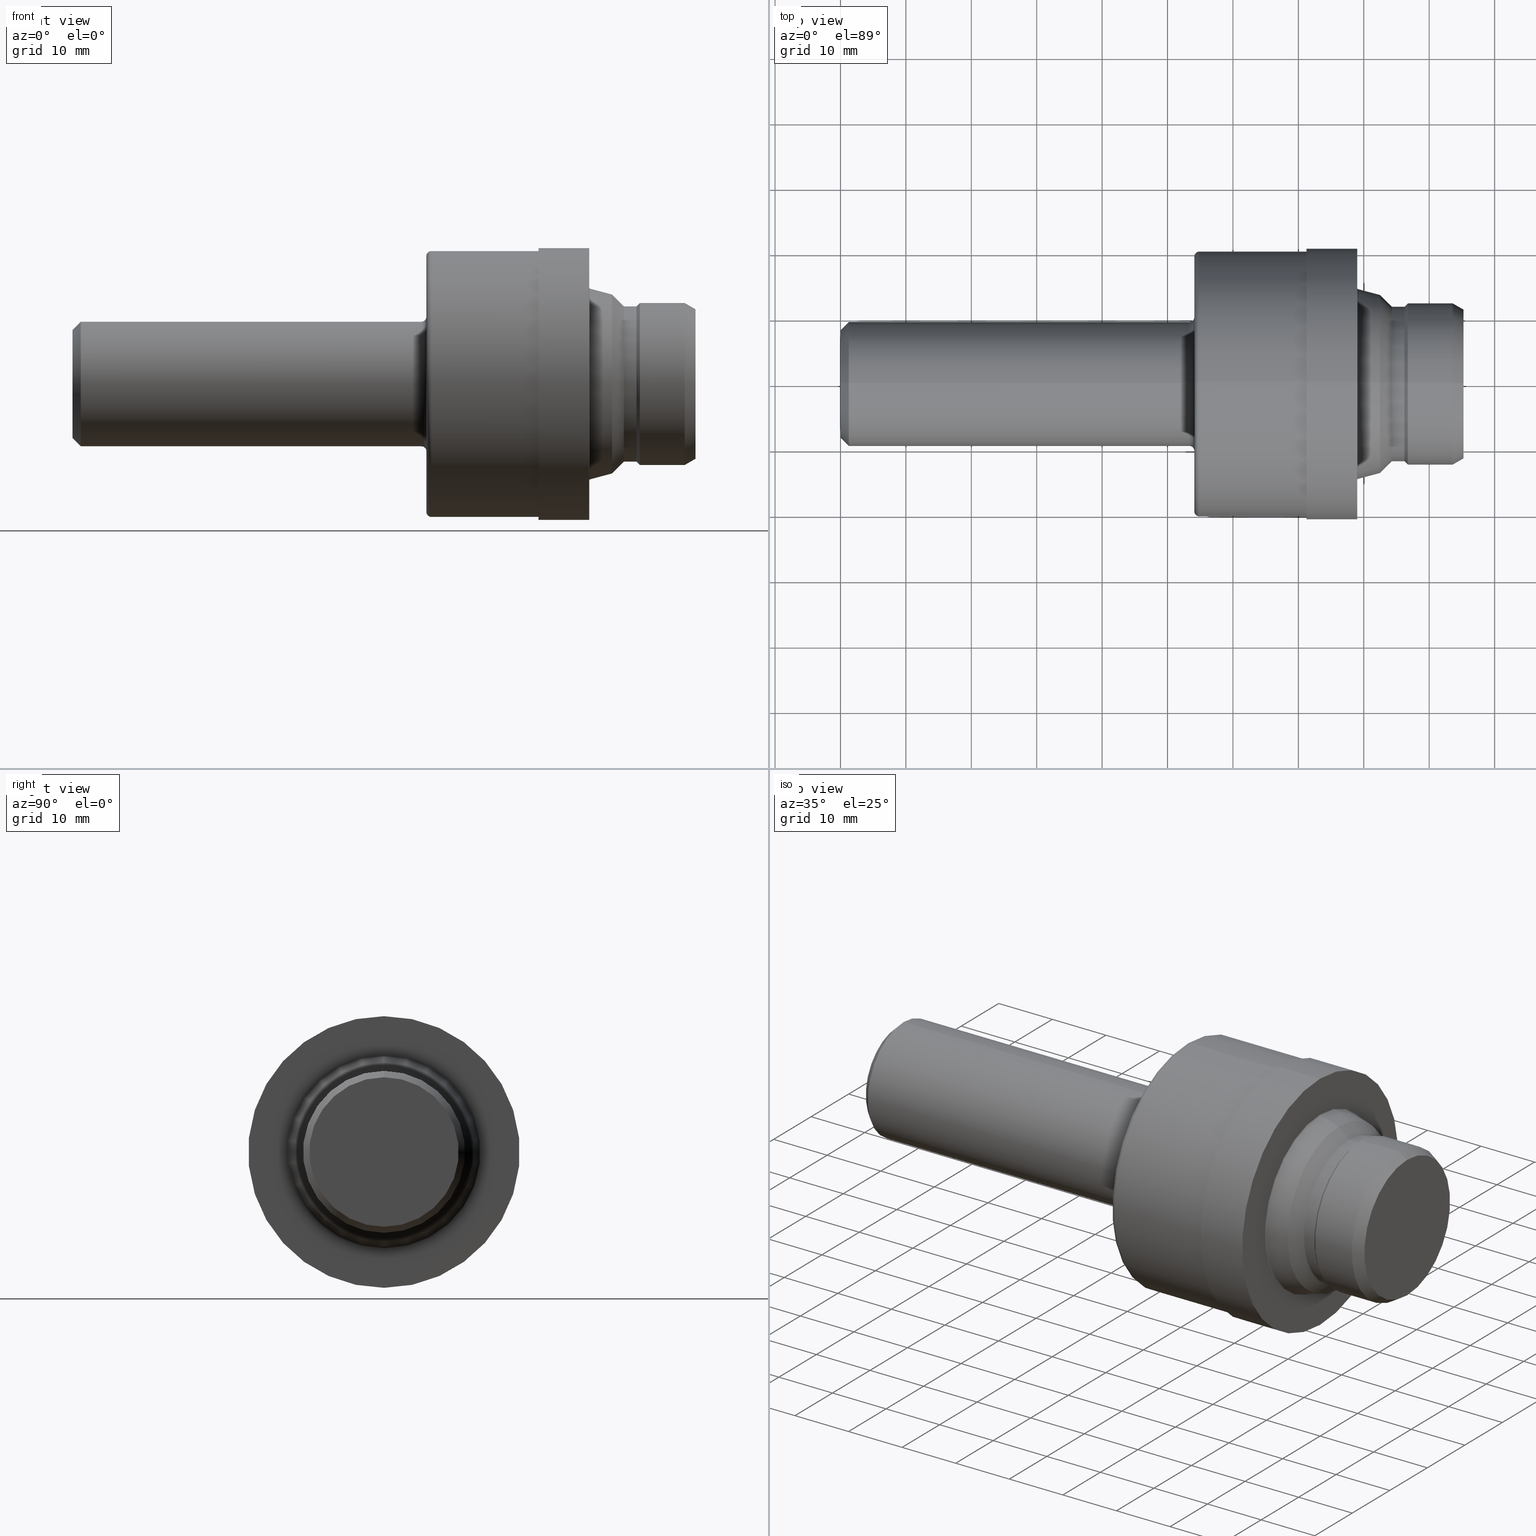
[diagram: canonical four-view strip — front | top / right | iso, engineering-drawing reading convention]
A machine part, canonical four-view strip (front | top / right | iso — engineering-drawing reading convention). The complete STEP part file that produces these views, byte-faithful:
ISO-10303-21;
HEADER;
FILE_DESCRIPTION (( 'STEP AP214' ),
    '1' );
FILE_NAME ('MS16142-12S-SolidModel.STEP',
    '2018-06-22T20:33:29',
    ( '' ),
    ( '' ),
    'SwSTEP 2.0',
    'SolidWorks 2018',
    '' );
FILE_SCHEMA (( 'AUTOMOTIVE_DESIGN' ));
ENDSEC;

DATA;
#1 = CARTESIAN_POINT ( 'NONE',  ( 3.318773011444506871, 5.725223786013876509E-17, -0.4675000000000000266 ) ) ;
#2 = EDGE_CURVE ( 'NONE', #697, #231, #4, .T. ) ;
#3 = CARTESIAN_POINT ( 'NONE',  ( 3.750000000000000000, 0.0000000000000000000, 0.4499722325026741521 ) ) ;
#4 = LINE ( 'NONE', #510, #665 ) ;
#5 = DIRECTION ( 'NONE',  ( 0.0000000000000000000, 0.0000000000000000000, 1.000000000000000000 ) ) ;
#6 = VERTEX_POINT ( 'NONE', #563 ) ;
#7 = FACE_OUTER_BOUND ( 'NONE', #92, .T. ) ;
#8 = PRESENTATION_LAYER_ASSIGNMENT (  '', '', ( #222 ) ) ;
#9 = DIRECTION ( 'NONE',  ( -1.000000000000000000, -0.0000000000000000000, -0.0000000000000000000 ) ) ;
#10 = DIRECTION ( 'NONE',  ( 0.0000000000000000000, 0.0000000000000000000, 1.000000000000000000 ) ) ;
#11 = DIRECTION ( 'NONE',  ( 0.0000000000000000000, 0.0000000000000000000, 1.000000000000000000 ) ) ;
#12 = FACE_OUTER_BOUND ( 'NONE', #165, .T. ) ;
#13 = CARTESIAN_POINT ( 'NONE',  ( 0.05000000000000000278, 4.592425496802575451E-17, -0.3750000000000000555 ) ) ;
#14 =( NAMED_UNIT ( * ) SI_UNIT ( $, .STERADIAN. ) SOLID_ANGLE_UNIT ( ) );
#15 = EDGE_CURVE ( 'NONE', #123, #381, #38, .T. ) ;
#16 = DIRECTION ( 'NONE',  ( 0.0000000000000000000, 0.0000000000000000000, 1.000000000000000000 ) ) ;
#17 = VECTOR ( 'NONE', #83, 39.37007874015748143 ) ;
#18 = DIRECTION ( 'NONE',  ( -0.9659258262890682012, 0.0000000000000000000, 0.2588190451025214611 ) ) ;
#19 = AXIS2_PLACEMENT_3D ( 'NONE', #209, #471, #454 ) ;
#20 = ORIENTED_EDGE ( 'NONE', *, *, #186, .T. ) ;
#21 = ORIENTED_EDGE ( 'NONE', *, *, #262, .T. ) ;
#22 = DIRECTION ( 'NONE',  ( -1.000000000000000000, -0.0000000000000000000, -0.0000000000000000000 ) ) ;
#23 = CARTESIAN_POINT ( 'NONE',  ( 3.117500000000000160, 7.115258552574734305E-17, -0.5810049524098421792 ) ) ;
#24 = EDGE_CURVE ( 'NONE', #101, #27, #511, .T. ) ;
#25 = CARTESIAN_POINT ( 'NONE',  ( 3.750000000000000000, 0.0000000000000000000, 0.0000000000000000000 ) ) ;
#26 = ORIENTED_EDGE ( 'NONE', *, *, #106, .T. ) ;
#27 = VERTEX_POINT ( 'NONE', #108 ) ;
#28 = EDGE_LOOP ( 'NONE', ( #646, #720 ) ) ;
#29 = EDGE_LOOP ( 'NONE', ( #363, #387, #352, #69 ) ) ;
#30 = PRODUCT_DEFINITION ( 'UNKNOWN', '', #839, #671 ) ;
#31 = VECTOR ( 'NONE', #396, 39.37007874015748143 ) ;
#32 = SURFACE_SIDE_STYLE ('',( #67 ) ) ;
#33 = DIRECTION ( 'NONE',  ( -1.000000000000000000, -0.0000000000000000000, -0.0000000000000000000 ) ) ;
#34 =( GEOMETRIC_REPRESENTATION_CONTEXT ( 3 ) GLOBAL_UNCERTAINTY_ASSIGNED_CONTEXT ( ( #809 ) ) GLOBAL_UNIT_ASSIGNED_CONTEXT ( ( #41, #35, #14 ) ) REPRESENTATION_CONTEXT ( 'NONE', 'WORKASPACE' ) );
#35 =( NAMED_UNIT ( * ) PLANE_ANGLE_UNIT ( ) SI_UNIT ( $, .RADIAN. ) );
#36 = DIRECTION ( 'NONE',  ( -1.000000000000000000, -0.0000000000000000000, -0.0000000000000000000 ) ) ;
#37 = CARTESIAN_POINT ( 'NONE',  ( 2.100000000000000089, 4.776122516674677409E-17, -0.3750000000000000555 ) ) ;
#38 = CIRCLE ( 'NONE', #622, 0.4874999999999999889 ) ;
#39 = ORIENTED_EDGE ( 'NONE', *, *, #148, .F. ) ;
#40 = FACE_OUTER_BOUND ( 'NONE', #312, .T. ) ;
#41 =( CONVERSION_BASED_UNIT ( 'INCH', #509 ) LENGTH_UNIT ( ) NAMED_UNIT ( #631 ) );
#42 = VERTEX_POINT ( 'NONE', #304 ) ;
#43 = EDGE_CURVE ( 'NONE', #109, #231, #157, .T. ) ;
#44 = CARTESIAN_POINT ( 'NONE',  ( 2.159999999999999698, 0.0000000000000000000, 0.0000000000000000000 ) ) ;
#45 = CARTESIAN_POINT ( 'NONE',  ( 3.395000000000000462, 0.0000000000000000000, 0.0000000000000000000 ) ) ;
#46 = EDGE_LOOP ( 'NONE', ( #760, #553, #394, #756 ) ) ;
#47 = CARTESIAN_POINT ( 'NONE',  ( 2.100000000000000089, 0.0000000000000000000, 0.4050000000000000266 ) ) ;
#48 = CARTESIAN_POINT ( 'NONE',  ( 3.750000000000000000, 0.0000000000000000000, 0.0000000000000000000 ) ) ;
#49 = AXIS2_PLACEMENT_3D ( 'NONE', #670, #385, #555 ) ;
#50 = DIRECTION ( 'NONE',  ( 0.0000000000000000000, 0.0000000000000000000, 1.000000000000000000 ) ) ;
#51 = VECTOR ( 'NONE', #706, 39.37007874015748143 ) ;
#52 = CARTESIAN_POINT ( 'NONE',  ( 0.0000000000000000000, 0.0000000000000000000, 0.3750000000000000555 ) ) ;
#53 = CARTESIAN_POINT ( 'NONE',  ( 0.0000000000000000000, 0.0000000000000000000, 0.0000000000000000000 ) ) ;
#54 = EDGE_CURVE ( 'NONE', #410, #453, #338, .T. ) ;
#55 = FACE_OUTER_BOUND ( 'NONE', #46, .T. ) ;
#56 = ORIENTED_EDGE ( 'NONE', *, *, #506, .T. ) ;
#57 = EDGE_CURVE ( 'NONE', #689, #828, #177, .T. ) ;
#58 = ORIENTED_EDGE ( 'NONE', *, *, #473, .T. ) ;
#59 = DIRECTION ( 'NONE',  ( -0.0000000000000000000, 1.000000000000000000, 1.224646799147353207E-16 ) ) ;
#60 = EDGE_LOOP ( 'NONE', ( #779, #58, #311, #592 ) ) ;
#61 = DIRECTION ( 'NONE',  ( -1.000000000000000000, -0.0000000000000000000, -0.0000000000000000000 ) ) ;
#62 = ORIENTED_EDGE ( 'NONE', *, *, #749, .T. ) ;
#63 = CARTESIAN_POINT ( 'NONE',  ( 3.318773011444506871, 0.0000000000000000000, 0.0000000000000000000 ) ) ;
#64 = AXIS2_PLACEMENT_3D ( 'NONE', #45, #36, #628 ) ;
#65 = DIRECTION ( 'NONE',  ( -1.000000000000000000, -0.0000000000000000000, -0.0000000000000000000 ) ) ;
#66 = ORIENTED_EDGE ( 'NONE', *, *, #834, .T. ) ;
#67 = SURFACE_STYLE_FILL_AREA ( #678 ) ;
#68 = VERTEX_POINT ( 'NONE', #676 ) ;
#69 = ORIENTED_EDGE ( 'NONE', *, *, #43, .F. ) ;
#70 = CARTESIAN_POINT ( 'NONE',  ( 0.0000000000000000000, 0.0000000000000000000, 0.0000000000000000000 ) ) ;
#71 = LINE ( 'NONE', #521, #572 ) ;
#72 = DIRECTION ( 'NONE',  ( 0.0000000000000000000, 0.0000000000000000000, 1.000000000000000000 ) ) ;
#73 = DIRECTION ( 'NONE',  ( 0.0000000000000000000, 0.0000000000000000000, 1.000000000000000000 ) ) ;
#74 =( LENGTH_UNIT ( ) NAMED_UNIT ( * ) SI_UNIT ( $, .METRE. ) );
#75 = CYLINDRICAL_SURFACE ( 'NONE', #163, 0.4874999999999999889 ) ;
#76 = VERTEX_POINT ( 'NONE', #439 ) ;
#77 = DIRECTION ( 'NONE',  ( -1.000000000000000000, -0.0000000000000000000, -0.0000000000000000000 ) ) ;
#78 = SURFACE_STYLE_USAGE ( .BOTH. , #81 ) ;
#79 = CONICAL_SURFACE ( 'NONE', #230, 0.5382730114445050118, 0.2617993877991501295 ) ;
#80 = DIRECTION ( 'NONE',  ( 0.0000000000000000000, 0.0000000000000000000, 1.000000000000000000 ) ) ;
#81 = SURFACE_SIDE_STYLE ('',( #748 ) ) ;
#82 = FACE_OUTER_BOUND ( 'NONE', #236, .T. ) ;
#83 = DIRECTION ( 'NONE',  ( 0.7071067811865489050, 0.0000000000000000000, -0.7071067811865461294 ) ) ;
#84 = FILL_AREA_STYLE ('',( #87 ) ) ;
#85 = DIRECTION ( 'NONE',  ( 0.0000000000000000000, 0.0000000000000000000, -1.000000000000000000 ) ) ;
#86 = DIRECTION ( 'NONE',  ( -1.000000000000000000, 0.0000000000000000000, -0.0000000000000000000 ) ) ;
#87 = FILL_AREA_STYLE_COLOUR ( '', #773 ) ;
#88 = ORIENTED_EDGE ( 'NONE', *, *, #330, .T. ) ;
#89 = FILL_AREA_STYLE_COLOUR ( '', #422 ) ;
#90 = CIRCLE ( 'NONE', #322, 0.7700000000000001288 ) ;
#91 = VERTEX_POINT ( 'NONE', #371 ) ;
#92 = EDGE_LOOP ( 'NONE', ( #342, #66, #476, #583 ) ) ;
#93 = ORIENTED_EDGE ( 'NONE', *, *, #54, .F. ) ;
#94 = APPLICATION_CONTEXT ( 'automotive_design' ) ;
#95 = DIRECTION ( 'NONE',  ( 0.0000000000000000000, 0.0000000000000000000, 1.000000000000000000 ) ) ;
#96 = VECTOR ( 'NONE', #324, 39.37007874015748143 ) ;
#97 = CARTESIAN_POINT ( 'NONE',  ( 0.0000000000000000000, 4.286263797015737827E-17, 0.3250000000000002331 ) ) ;
#98 = ADVANCED_FACE ( 'NONE', ( #316, #493 ), #816, .F. ) ;
#99 = CARTESIAN_POINT ( 'NONE',  ( 3.415000000000000036, 5.970153145843346608E-17, -0.4874999999999999889 ) ) ;
#100 = EDGE_LOOP ( 'NONE', ( #663, #712, #648, #833 ) ) ;
#101 = VERTEX_POINT ( 'NONE', #37 ) ;
#102 = TOROIDAL_SURFACE ( 'NONE', #835, 0.7700000000000001288, 0.02999999999999995379 ) ;
#103 = ORIENTED_EDGE ( 'NONE', *, *, #531, .T. ) ;
#104 = DIRECTION ( 'NONE',  ( -1.000000000000000000, -0.0000000000000000000, -0.0000000000000000000 ) ) ;
#105 = FACE_OUTER_BOUND ( 'NONE', #845, .T. ) ;
#106 = EDGE_CURVE ( 'NONE', #68, #6, #811, .T. ) ;
#107 = CYLINDRICAL_SURFACE ( 'NONE', #780, 0.8000000000000000444 ) ;
#108 = CARTESIAN_POINT ( 'NONE',  ( 2.100000000000000089, 0.0000000000000000000, 0.3750000000000000555 ) ) ;
#109 = VERTEX_POINT ( 'NONE', #755 ) ;
#110 = ORIENTED_EDGE ( 'NONE', *, *, #545, .T. ) ;
#111 = ADVANCED_FACE ( 'NONE', ( #832 ), #786, .T. ) ;
#112 = APPLICATION_PROTOCOL_DEFINITION ( 'draft international standard', 'automotive_design', 1998, #94 ) ;
#113 = CARTESIAN_POINT ( 'NONE',  ( 0.05000000000000000278, 0.0000000000000000000, 0.0000000000000000000 ) ) ;
#114 = ADVANCED_FACE ( 'NONE', ( #136 ), #446, .T. ) ;
#115 = DIRECTION ( 'NONE',  ( 0.0000000000000000000, 0.0000000000000000000, -1.000000000000000000 ) ) ;
#116 = ORIENTED_EDGE ( 'NONE', *, *, #595, .T. ) ;
#117 = LINE ( 'NONE', #812, #808 ) ;
#118 = AXIS2_PLACEMENT_3D ( 'NONE', #837, #417, #766 ) ;
#119 = ORIENTED_EDGE ( 'NONE', *, *, #578, .F. ) ;
#120 = VECTOR ( 'NONE', #698, 39.37007874015748143 ) ;
#121 = EDGE_CURVE ( 'NONE', #91, #402, #630, .T. ) ;
#122 = CARTESIAN_POINT ( 'NONE',  ( 3.110000000000000320, 0.0000000000000000000, 0.0000000000000000000 ) ) ;
#123 = VERTEX_POINT ( 'NONE', #633 ) ;
#124 = CONICAL_SURFACE ( 'NONE', #406, 0.3750000000000000555, 0.7853981633974463916 ) ;
#125 = FACE_OUTER_BOUND ( 'NONE', #537, .T. ) ;
#126 = DIRECTION ( 'NONE',  ( 0.0000000000000000000, 0.0000000000000000000, 1.000000000000000000 ) ) ;
#127 = CIRCLE ( 'NONE', #669, 0.02999999999999995379 ) ;
#128 = DIRECTION ( 'NONE',  ( 0.0000000000000000000, 0.0000000000000000000, 1.000000000000000000 ) ) ;
#129 = DIRECTION ( 'NONE',  ( -1.000000000000000000, -0.0000000000000000000, -0.0000000000000000000 ) ) ;
#130 = ORIENTED_EDGE ( 'NONE', *, *, #581, .T. ) ;
#131 = EDGE_CURVE ( 'NONE', #697, #325, #610, .T. ) ;
#132 = FACE_OUTER_BOUND ( 'NONE', #372, .T. ) ;
#133 = ORIENTED_EDGE ( 'NONE', *, *, #242, .F. ) ;
#134 = CARTESIAN_POINT ( 'NONE',  ( 3.248000000000000220, 0.0000000000000000000, 0.0000000000000000000 ) ) ;
#135 = CARTESIAN_POINT ( 'NONE',  ( 0.05000000000000000278, 0.0000000000000000000, 0.0000000000000000000 ) ) ;
#136 = FACE_OUTER_BOUND ( 'NONE', #487, .T. ) ;
#137 = ORIENTED_EDGE ( 'NONE', *, *, #330, .F. ) ;
#138 = ORIENTED_EDGE ( 'NONE', *, *, #340, .T. ) ;
#139 = MECHANICAL_DESIGN_GEOMETRIC_PRESENTATION_REPRESENTATION (  '', ( #222 ), #765 ) ;
#140 = CARTESIAN_POINT ( 'NONE',  ( 0.0000000000000000000, 0.0000000000000000000, 0.0000000000000000000 ) ) ;
#141 = ORIENTED_EDGE ( 'NONE', *, *, #620, .T. ) ;
#142 = CIRCLE ( 'NONE', #297, 0.02999999999999995379 ) ;
#143 = ORIENTED_EDGE ( 'NONE', *, *, #441, .F. ) ;
#144 = FACE_BOUND ( 'NONE', #818, .T. ) ;
#145 = CIRCLE ( 'NONE', #339, 0.8000000000000000444 ) ;
#146 = DIRECTION ( 'NONE',  ( 0.0000000000000000000, 0.0000000000000000000, 1.000000000000000000 ) ) ;
#147 =( NAMED_UNIT ( * ) SI_UNIT ( $, .STERADIAN. ) SOLID_ANGLE_UNIT ( ) );
#148 = EDGE_CURVE ( 'NONE', #388, #381, #470, .T. ) ;
#149 = CARTESIAN_POINT ( 'NONE',  ( 0.05000000000000000278, 0.0000000000000000000, -0.3750000000000000555 ) ) ;
#150 = CARTESIAN_POINT ( 'NONE',  ( 2.805000000000000160, 9.797174393178826150E-17, -0.8000000000000000444 ) ) ;
#151 = AXIS2_PLACEMENT_3D ( 'NONE', #270, #479, #287 ) ;
#152 = CARTESIAN_POINT ( 'NONE',  ( 0.0000000000000000000, 0.0000000000000000000, 0.0000000000000000000 ) ) ;
#153 = DIRECTION ( 'NONE',  ( 0.0000000000000000000, -1.000000000000000000, 0.0000000000000000000 ) ) ;
#154 = DIRECTION ( 'NONE',  ( 0.0000000000000000000, -1.000000000000000000, 0.0000000000000000000 ) ) ;
#155 = APPLICATION_PROTOCOL_DEFINITION ( 'draft international standard', 'automotive_design', 1998, #212 ) ;
#156 = AXIS2_PLACEMENT_3D ( 'NONE', #527, #129, #582 ) ;
#157 = CIRCLE ( 'NONE', #523, 0.4874999999999999889 ) ;
#158 = CARTESIAN_POINT ( 'NONE',  ( 2.129999999999999893, 0.0000000000000000000, 0.0000000000000000000 ) ) ;
#159 = DIRECTION ( 'NONE',  ( 0.0000000000000000000, 0.0000000000000000000, 1.000000000000000000 ) ) ;
#160 = EDGE_CURVE ( 'NONE', #689, #196, #291, .T. ) ;
#161 = DIRECTION ( 'NONE',  ( 0.0000000000000000000, 0.0000000000000000000, 1.000000000000000000 ) ) ;
#162 = AXIS2_PLACEMENT_3D ( 'NONE', #349, #77, #73 ) ;
#163 = AXIS2_PLACEMENT_3D ( 'NONE', #485, #661, #348 ) ;
#164 =( NAMED_UNIT ( * ) PLANE_ANGLE_UNIT ( ) SI_UNIT ( $, .RADIAN. ) );
#165 = EDGE_LOOP ( 'NONE', ( #758, #465, #141, #499 ) ) ;
#166 = DIRECTION ( 'NONE',  ( 0.0000000000000000000, 0.0000000000000000000, 1.000000000000000000 ) ) ;
#167 = FACE_OUTER_BOUND ( 'NONE', #768, .T. ) ;
#168 = ORIENTED_EDGE ( 'NONE', *, *, #640, .F. ) ;
#169 =( CONVERSION_BASED_UNIT ( 'INCH', #564 ) LENGTH_UNIT ( ) NAMED_UNIT ( #220 ) );
#170 = EDGE_LOOP ( 'NONE', ( #261, #138, #787, #472 ) ) ;
#171 = CARTESIAN_POINT ( 'NONE',  ( 3.415000000000000036, 0.0000000000000000000, 0.0000000000000000000 ) ) ;
#172 = FACE_BOUND ( 'NONE', #28, .T. ) ;
#173 = DIRECTION ( 'NONE',  ( 0.0000000000000000000, 0.0000000000000000000, 1.000000000000000000 ) ) ;
#174 = DIRECTION ( 'NONE',  ( 1.000000000000000000, 0.0000000000000000000, 0.0000000000000000000 ) ) ;
#175 = CARTESIAN_POINT ( 'NONE',  ( 2.159999999999999698, 0.0000000000000000000, 0.7700000000000001288 ) ) ;
#176 = EDGE_CURVE ( 'NONE', #790, #717, #647, .T. ) ;
#177 = CIRCLE ( 'NONE', #680, 0.8000000000000000444 ) ;
#178 = ORIENTED_EDGE ( 'NONE', *, *, #692, .T. ) ;
#179 = DIRECTION ( 'NONE',  ( 0.0000000000000000000, 0.0000000000000000000, -1.000000000000000000 ) ) ;
#180 = ORIENTED_EDGE ( 'NONE', *, *, #314, .F. ) ;
#181 = AXIS2_PLACEMENT_3D ( 'NONE', #685, #215, #159 ) ;
#182 = CARTESIAN_POINT ( 'NONE',  ( 3.750000000000000000, 0.0000000000000000000, 0.0000000000000000000 ) ) ;
#183 = VECTOR ( 'NONE', #334, 39.37007874015747433 ) ;
#184 = DIRECTION ( 'NONE',  ( 1.000000000000000000, 0.0000000000000000000, 0.0000000000000000000 ) ) ;
#185 = DIRECTION ( 'NONE',  ( -1.000000000000000000, -0.0000000000000000000, -0.0000000000000000000 ) ) ;
#186 = EDGE_CURVE ( 'NONE', #27, #42, #764, .T. ) ;
#187 = CARTESIAN_POINT ( 'NONE',  ( 2.129999999999999893, 9.613477373306722344E-17, -0.7700000000000001288 ) ) ;
#188 = FACE_OUTER_BOUND ( 'NONE', #657, .T. ) ;
#189 = CARTESIAN_POINT ( 'NONE',  ( 2.159999999999999698, 9.429780353434621002E-17, -0.7700000000000001288 ) ) ;
#190 = ORIENTED_EDGE ( 'NONE', *, *, #543, .F. ) ;
#191 = DIRECTION ( 'NONE',  ( -1.000000000000000000, -0.0000000000000000000, -0.0000000000000000000 ) ) ;
#192 = AXIS2_PLACEMENT_3D ( 'NONE', #350, #830, #449 ) ;
#193 = DIRECTION ( 'NONE',  ( -1.000000000000000000, -0.0000000000000000000, -0.0000000000000000000 ) ) ;
#194 =( LENGTH_UNIT ( ) NAMED_UNIT ( * ) SI_UNIT ( $, .METRE. ) );
#195 = ORIENTED_EDGE ( 'NONE', *, *, #369, .F. ) ;
#196 = VERTEX_POINT ( 'NONE', #638 ) ;
#197 = EDGE_CURVE ( 'NONE', #231, #109, #268, .T. ) ;
#198 = AXIS2_PLACEMENT_3D ( 'NONE', #267, #216, #128 ) ;
#199 = AXIS2_PLACEMENT_3D ( 'NONE', #714, #715, #5 ) ;
#200 = CARTESIAN_POINT ( 'NONE',  ( 2.129999999999999893, 0.0000000000000000000, 0.0000000000000000000 ) ) ;
#201 = EDGE_LOOP ( 'NONE', ( #696, #195, #829, #26 ) ) ;
#202 = ORIENTED_EDGE ( 'NONE', *, *, #480, .T. ) ;
#203 = PLANE ( 'NONE',  #151 ) ;
#204 = PRODUCT_CONTEXT ( 'NONE', #94, 'mechanical' ) ;
#205 = CIRCLE ( 'NONE', #603, 0.02999999999999995379 ) ;
#206 = DIRECTION ( 'NONE',  ( 0.0000000000000000000, 0.0000000000000000000, 1.000000000000000000 ) ) ;
#207 = CARTESIAN_POINT ( 'NONE',  ( 0.0000000000000000000, 0.0000000000000000000, 0.0000000000000000000 ) ) ;
#208 = FACE_OUTER_BOUND ( 'NONE', #170, .T. ) ;
#209 = CARTESIAN_POINT ( 'NONE',  ( 0.0000000000000000000, 0.0000000000000000000, 0.0000000000000000000 ) ) ;
#210 = ORIENTED_EDGE ( 'NONE', *, *, #160, .T. ) ;
#211 = CARTESIAN_POINT ( 'NONE',  ( 2.129999999999999893, 0.0000000000000000000, 0.7700000000000001288 ) ) ;
#212 = APPLICATION_CONTEXT ( 'automotive_design' ) ;
#213 = EDGE_CURVE ( 'NONE', #388, #699, #71, .T. ) ;
#214 = CARTESIAN_POINT ( 'NONE',  ( 2.129999999999999893, 4.959819536546781216E-17, -0.4050000000000000266 ) ) ;
#215 = DIRECTION ( 'NONE',  ( -1.000000000000000000, -0.0000000000000000000, -0.0000000000000000000 ) ) ;
#216 = DIRECTION ( 'NONE',  ( -1.000000000000000000, -0.0000000000000000000, -0.0000000000000000000 ) ) ;
#217 = ORIENTED_EDGE ( 'NONE', *, *, #736, .F. ) ;
#218 = DIRECTION ( 'NONE',  ( 0.7071067811865489050, 8.659560562354915602E-17, 0.7071067811865461294 ) ) ;
#219 = DIRECTION ( 'NONE',  ( -1.000000000000000000, -0.0000000000000000000, -0.0000000000000000000 ) ) ;
#220 = DIMENSIONAL_EXPONENTS ( 1.000000000000000000, 0.0000000000000000000, 0.0000000000000000000, 0.0000000000000000000, 0.0000000000000000000, 0.0000000000000000000, 0.0000000000000000000 ) ;
#221 = VECTOR ( 'NONE', #575, 39.37007874015748143 ) ;
#222 = STYLED_ITEM ( 'NONE', ( #759 ), #587 ) ;
#223 = DIRECTION ( 'NONE',  ( 0.0000000000000000000, 0.0000000000000000000, 1.000000000000000000 ) ) ;
#224 = EDGE_CURVE ( 'NONE', #652, #91, #741, .T. ) ;
#225 = DIRECTION ( 'NONE',  ( -1.000000000000000000, -0.0000000000000000000, -0.0000000000000000000 ) ) ;
#226 = CONICAL_SURFACE ( 'NONE', #390, 0.4499722325026741521, 0.5235987755983008141 ) ;
#227 = ORIENTED_EDGE ( 'NONE', *, *, #441, .T. ) ;
#228 = DIRECTION ( 'NONE',  ( 0.0000000000000000000, 0.0000000000000000000, 1.000000000000000000 ) ) ;
#229 = VERTEX_POINT ( 'NONE', #187 ) ;
#230 = AXIS2_PLACEMENT_3D ( 'NONE', #283, #65, #532 ) ;
#231 = VERTEX_POINT ( 'NONE', #524 ) ;
#232 = CARTESIAN_POINT ( 'NONE',  ( 2.129999999999999893, 0.0000000000000000000, 0.0000000000000000000 ) ) ;
#233 = DIRECTION ( 'NONE',  ( 0.0000000000000000000, 0.0000000000000000000, 1.000000000000000000 ) ) ;
#234 = CARTESIAN_POINT ( 'NONE',  ( 0.0000000000000000000, 0.0000000000000000000, 0.0000000000000000000 ) ) ;
#235 = AXIS2_PLACEMENT_3D ( 'NONE', #238, #104, #173 ) ;
#236 = EDGE_LOOP ( 'NONE', ( #792, #568, #20, #770 ) ) ;
#237 = VECTOR ( 'NONE', #443, 39.37007874015748143 ) ;
#238 = CARTESIAN_POINT ( 'NONE',  ( 3.110000000000000320, 0.0000000000000000000, 0.0000000000000000000 ) ) ;
#239 = DIRECTION ( 'NONE',  ( -1.000000000000000000, -0.0000000000000000000, -0.0000000000000000000 ) ) ;
#240 = ORIENTED_EDGE ( 'NONE', *, *, #566, .T. ) ;
#241 = PRODUCT ( 'MS16142-12S-SolidModel', 'MS16142-12S-SolidModel', '', ( #204 ) ) ;
#242 = EDGE_CURVE ( 'NONE', #828, #488, #426, .T. ) ;
#243 = AXIS2_PLACEMENT_3D ( 'NONE', #785, #279, #206 ) ;
#244 = DIRECTION ( 'NONE',  ( 0.0000000000000000000, -1.000000000000000000, 0.0000000000000000000 ) ) ;
#245 = VECTOR ( 'NONE', #450, 39.37007874015748143 ) ;
#246 = CARTESIAN_POINT ( 'NONE',  ( 0.0000000000000000000, 0.0000000000000000000, 0.4675000000000000266 ) ) ;
#247 = DIRECTION ( 'NONE',  ( 0.0000000000000000000, 0.0000000000000000000, 1.000000000000000000 ) ) ;
#248 = PRODUCT_RELATED_PRODUCT_CATEGORY ( 'part', '', ( #241 ) ) ;
#249 = CARTESIAN_POINT ( 'NONE',  ( 2.100000000000000089, 0.0000000000000000000, 0.0000000000000000000 ) ) ;
#250 = CARTESIAN_POINT ( 'NONE',  ( 3.318773011444506871, 0.0000000000000000000, 0.4675000000000000266 ) ) ;
#251 = CIRCLE ( 'NONE', #429, 0.3750000000000000555 ) ;
#252 = ORIENTED_EDGE ( 'NONE', *, *, #376, .T. ) ;
#253 = VECTOR ( 'NONE', #218, 39.37007874015748143 ) ;
#254 = ORIENTED_EDGE ( 'NONE', *, *, #293, .T. ) ;
#255 = CONICAL_SURFACE ( 'NONE', #162, 0.4675000000000000266, 0.7853981633974377319 ) ;
#256 = DIRECTION ( 'NONE',  ( -1.000000000000000000, -0.0000000000000000000, -0.0000000000000000000 ) ) ;
#257 = ORIENTED_EDGE ( 'NONE', *, *, #609, .F. ) ;
#258 = DIRECTION ( 'NONE',  ( 0.0000000000000000000, -1.224646799147354933E-16, 1.000000000000000000 ) ) ;
#259 = ORIENTED_EDGE ( 'NONE', *, *, #277, .T. ) ;
#260 = DIRECTION ( 'NONE',  ( 0.0000000000000000000, 0.0000000000000000000, 1.000000000000000000 ) ) ;
#261 = ORIENTED_EDGE ( 'NONE', *, *, #197, .T. ) ;
#262 = EDGE_CURVE ( 'NONE', #435, #478, #405, .T. ) ;
#263 = CARTESIAN_POINT ( 'NONE',  ( 3.248000000000000220, 0.0000000000000000000, 0.5382730114445050118 ) ) ;
#264 = UNCERTAINTY_MEASURE_WITH_UNIT (LENGTH_MEASURE( 1.000000000000000082E-05 ), #356, 'distance_accuracy_value', 'NONE');
#265 = ORIENTED_EDGE ( 'NONE', *, *, #556, .F. ) ;
#266 = CIRCLE ( 'NONE', #831, 0.8000000000000000444 ) ;
#267 = CARTESIAN_POINT ( 'NONE',  ( 0.0000000000000000000, 0.0000000000000000000, 0.0000000000000000000 ) ) ;
#268 = CIRCLE ( 'NONE', #687, 0.4874999999999999889 ) ;
#269 = MECHANICAL_DESIGN_GEOMETRIC_PRESENTATION_REPRESENTATION (  '', ( #841 ), #34 ) ;
#270 = CARTESIAN_POINT ( 'NONE',  ( 0.0000000000000000000, 0.0000000000000000000, 0.0000000000000000000 ) ) ;
#271 = DIRECTION ( 'NONE',  ( 0.0000000000000000000, 0.0000000000000000000, 1.000000000000000000 ) ) ;
#272 = ORIENTED_EDGE ( 'NONE', *, *, #558, .T. ) ;
#273 = TOROIDAL_SURFACE ( 'NONE', #519, 0.5810049524098421792, 0.007499999999999804566 ) ;
#274 = ORIENTED_EDGE ( 'NONE', *, *, #428, .T. ) ;
#275 = DIRECTION ( 'NONE',  ( -0.0000000000000000000, 0.0000000000000000000, 1.000000000000000000 ) ) ;
#276 = CARTESIAN_POINT ( 'NONE',  ( 0.05000000000000000278, 4.592425496802575451E-17, 0.3750000000000000555 ) ) ;
#277 = EDGE_CURVE ( 'NONE', #699, #402, #391, .T. ) ;
#278 = CYLINDRICAL_SURFACE ( 'NONE', #335, 0.8175000000000000044 ) ;
#279 = DIRECTION ( 'NONE',  ( -1.000000000000000000, -0.0000000000000000000, -0.0000000000000000000 ) ) ;
#280 = CIRCLE ( 'NONE', #192, 0.5382730114445050118 ) ;
#281 = ORIENTED_EDGE ( 'NONE', *, *, #197, .F. ) ;
#282 = CARTESIAN_POINT ( 'NONE',  ( 0.0000000000000000000, 0.0000000000000000000, 0.0000000000000000000 ) ) ;
#283 = CARTESIAN_POINT ( 'NONE',  ( 3.248000000000000220, 0.0000000000000000000, 0.0000000000000000000 ) ) ;
#284 = DIRECTION ( 'NONE',  ( 1.000000000000000000, 0.0000000000000000000, 0.0000000000000000000 ) ) ;
#285 = DIRECTION ( 'NONE',  ( 0.0000000000000000000, 0.0000000000000000000, 1.000000000000000000 ) ) ;
#286 = CIRCLE ( 'NONE', #817, 0.8175000000000000044 ) ;
#287 = DIRECTION ( 'NONE',  ( 0.0000000000000000000, 0.0000000000000000000, -1.000000000000000000 ) ) ;
#288 = AXIS2_PLACEMENT_3D ( 'NONE', #182, #634, #247 ) ;
#289 = ORIENTED_EDGE ( 'NONE', *, *, #242, .T. ) ;
#290 = CARTESIAN_POINT ( 'NONE',  ( 3.110000000000000320, 0.0000000000000000000, 0.8175000000000000044 ) ) ;
#291 = LINE ( 'NONE', #320, #96 ) ;
#292 = CARTESIAN_POINT ( 'NONE',  ( 2.159999999999999698, 0.0000000000000000000, 0.0000000000000000000 ) ) ;
#293 = EDGE_CURVE ( 'NONE', #488, #229, #205, .T. ) ;
#294 = CARTESIAN_POINT ( 'NONE',  ( 2.129999999999999893, 0.4050000000000000266, 0.0000000000000000000 ) ) ;
#295 = AXIS2_PLACEMENT_3D ( 'NONE', #708, #534, #260 ) ;
#296 = DIMENSIONAL_EXPONENTS ( 1.000000000000000000, 0.0000000000000000000, 0.0000000000000000000, 0.0000000000000000000, 0.0000000000000000000, 0.0000000000000000000, 0.0000000000000000000 ) ;
#297 = AXIS2_PLACEMENT_3D ( 'NONE', #418, #59, #463 ) ;
#298 = DIRECTION ( 'NONE',  ( -0.0000000000000000000, 0.0000000000000000000, 1.000000000000000000 ) ) ;
#299 = DIRECTION ( 'NONE',  ( -1.000000000000000000, -0.0000000000000000000, -0.0000000000000000000 ) ) ;
#300 = ORIENTED_EDGE ( 'NONE', *, *, #213, .F. ) ;
#301 = CIRCLE ( 'NONE', #341, 0.4499722325026741521 ) ;
#302 = ORIENTED_EDGE ( 'NONE', *, *, #176, .T. ) ;
#303 = CARTESIAN_POINT ( 'NONE',  ( 0.0000000000000000000, 0.0000000000000000000, -0.3250000000000002331 ) ) ;
#304 = CARTESIAN_POINT ( 'NONE',  ( 0.05000000000000000278, 0.0000000000000000000, 0.3750000000000000555 ) ) ;
#305 = FACE_OUTER_BOUND ( 'NONE', #307, .T. ) ;
#306 = CIRCLE ( 'NONE', #815, 0.5737605087126742553 ) ;
#307 = EDGE_LOOP ( 'NONE', ( #103, #302, #433, #594 ) ) ;
#308 = AXIS2_PLACEMENT_3D ( 'NONE', #415, #538, #475 ) ;
#309 = DIRECTION ( 'NONE',  ( -1.000000000000000000, -0.0000000000000000000, -0.0000000000000000000 ) ) ;
#310 = VERTEX_POINT ( 'NONE', #525 ) ;
#311 = ORIENTED_EDGE ( 'NONE', *, *, #389, .T. ) ;
#312 = EDGE_LOOP ( 'NONE', ( #375, #56, #227, #526 ) ) ;
#313 = VECTOR ( 'NONE', #747, 39.37007874015748143 ) ;
#314 = EDGE_CURVE ( 'NONE', #402, #6, #365, .T. ) ;
#315 = CARTESIAN_POINT ( 'NONE',  ( 3.248000000000000220, 6.591943205329196732E-17, -0.5382730114445050118 ) ) ;
#316 = FACE_BOUND ( 'NONE', #752, .T. ) ;
#317 = DIRECTION ( 'NONE',  ( -0.0000000000000000000, 1.000000000000000000, 1.224646799147353207E-16 ) ) ;
#318 = DIRECTION ( 'NONE',  ( 0.0000000000000000000, 0.0000000000000000000, 1.000000000000000000 ) ) ;
#319 = EDGE_LOOP ( 'NONE', ( #133, #424, #210, #735 ) ) ;
#320 = CARTESIAN_POINT ( 'NONE',  ( 0.0000000000000000000, 0.0000000000000000000, 0.8000000000000000444 ) ) ;
#321 = CIRCLE ( 'NONE', #199, 0.4675000000000000266 ) ;
#322 = AXIS2_PLACEMENT_3D ( 'NONE', #158, #690, #567 ) ;
#323 = DIRECTION ( 'NONE',  ( 0.0000000000000000000, 0.0000000000000000000, 1.000000000000000000 ) ) ;
#324 = DIRECTION ( 'NONE',  ( -1.000000000000000000, -0.0000000000000000000, -0.0000000000000000000 ) ) ;
#325 = VERTEX_POINT ( 'NONE', #580 ) ;
#326 = CYLINDRICAL_SURFACE ( 'NONE', #397, 0.3750000000000000555 ) ;
#327 = DIRECTION ( 'NONE',  ( 0.0000000000000000000, 0.0000000000000000000, 1.000000000000000000 ) ) ;
#328 = FACE_OUTER_BOUND ( 'NONE', #613, .T. ) ;
#329 = ORIENTED_EDGE ( 'NONE', *, *, #462, .T. ) ;
#330 = EDGE_CURVE ( 'NONE', #717, #478, #704, .T. ) ;
#331 = ADVANCED_FACE ( 'NONE', ( #12 ), #722, .F. ) ;
#332 = DIRECTION ( 'NONE',  ( -1.000000000000000000, -0.0000000000000000000, -0.0000000000000000000 ) ) ;
#333 = EDGE_LOOP ( 'NONE', ( #377, #289, #710, #579 ) ) ;
#334 = DIRECTION ( 'NONE',  ( -0.9659258262890682012, 3.169619151431773569E-17, -0.2588190451025214611 ) ) ;
#335 = AXIS2_PLACEMENT_3D ( 'NONE', #53, #191, #542 ) ;
#336 = DIRECTION ( 'NONE',  ( 0.0000000000000000000, 0.0000000000000000000, 1.000000000000000000 ) ) ;
#337 = CARTESIAN_POINT ( 'NONE',  ( 3.318773011444506871, 0.0000000000000000000, 0.4675000000000000266 ) ) ;
#338 = CIRCLE ( 'NONE', #401, 0.3250000000000002331 ) ;
#339 = AXIS2_PLACEMENT_3D ( 'NONE', #574, #548, #379 ) ;
#340 = EDGE_CURVE ( 'NONE', #109, #381, #522, .T. ) ;
#341 = AXIS2_PLACEMENT_3D ( 'NONE', #25, #814, #80 ) ;
#342 = ORIENTED_EDGE ( 'NONE', *, *, #783, .F. ) ;
#343 = CIRCLE ( 'NONE', #181, 0.3750000000000000555 ) ;
#344 = PLANE ( 'NONE',  #693 ) ;
#345 = VECTOR ( 'NONE', #299, 39.37007874015748143 ) ;
#346 = ORIENTED_EDGE ( 'NONE', *, *, #2, .F. ) ;
#347 = DIRECTION ( 'NONE',  ( 0.0000000000000000000, 0.0000000000000000000, 1.000000000000000000 ) ) ;
#348 = DIRECTION ( 'NONE',  ( 0.0000000000000000000, 0.0000000000000000000, 1.000000000000000000 ) ) ;
#349 = CARTESIAN_POINT ( 'NONE',  ( 3.318773011444506871, 0.0000000000000000000, 0.0000000000000000000 ) ) ;
#350 = CARTESIAN_POINT ( 'NONE',  ( 3.248000000000000220, 0.0000000000000000000, 0.0000000000000000000 ) ) ;
#351 = CARTESIAN_POINT ( 'NONE',  ( 3.750000000000000000, 0.4499722325026741521, 0.0000000000000000000 ) ) ;
#352 = ORIENTED_EDGE ( 'NONE', *, *, #2, .T. ) ;
#353 = ORIENTED_EDGE ( 'NONE', *, *, #277, .F. ) ;
#354 =( NAMED_UNIT ( * ) PLANE_ANGLE_UNIT ( ) SI_UNIT ( $, .RADIAN. ) );
#355 = AXIS2_PLACEMENT_3D ( 'NONE', #386, #836, #445 ) ;
#356 =( CONVERSION_BASED_UNIT ( 'INCH', #718 ) LENGTH_UNIT ( ) NAMED_UNIT ( #296 ) );
#357 = DIRECTION ( 'NONE',  ( -1.000000000000000000, -0.0000000000000000000, -0.0000000000000000000 ) ) ;
#358 = ORIENTED_EDGE ( 'NONE', *, *, #480, .F. ) ;
#359 = ORIENTED_EDGE ( 'NONE', *, *, #131, .T. ) ;
#360 = CARTESIAN_POINT ( 'NONE',  ( 2.159999999999999698, 0.0000000000000000000, 0.0000000000000000000 ) ) ;
#361 = DIRECTION ( 'NONE',  ( 1.000000000000000000, 0.0000000000000000000, 0.0000000000000000000 ) ) ;
#362 = PRESENTATION_LAYER_ASSIGNMENT (  '', '', ( #841 ) ) ;
#363 = ORIENTED_EDGE ( 'NONE', *, *, #462, .F. ) ;
#364 = DIRECTION ( 'NONE',  ( 0.0000000000000000000, 0.0000000000000000000, 1.000000000000000000 ) ) ;
#365 = LINE ( 'NONE', #315, #183 ) ;
#366 = DIRECTION ( 'NONE',  ( -0.8660254037844377084, 6.123233995736786990E-17, -0.5000000000000016653 ) ) ;
#367 = DIRECTION ( 'NONE',  ( -1.000000000000000000, -0.0000000000000000000, -0.0000000000000000000 ) ) ;
#368 = ADVANCED_FACE ( 'NONE', ( #172, #677 ), #761, .F. ) ;
#369 = EDGE_CURVE ( 'NONE', #464, #797, #656, .T. ) ;
#370 = CARTESIAN_POINT ( 'NONE',  ( 0.0000000000000000000, 4.592425496802575451E-17, -0.3750000000000000555 ) ) ;
#371 = CARTESIAN_POINT ( 'NONE',  ( 3.248000000000000220, 0.0000000000000000000, 0.5382730114445050118 ) ) ;
#372 = EDGE_LOOP ( 'NONE', ( #353, #398, #467, #358 ) ) ;
#373 = CLOSED_SHELL ( 'NONE', ( #590, #793, #331, #468, #461, #801, #796, #700, #716, #709, #114, #713, #111, #724, #667, #664, #596, #695, #515, #810, #660, #827, #799, #368, #662, #688, #98, #382, #778, #607, #805 ) ) ;
#374 = CYLINDRICAL_SURFACE ( 'NONE', #784, 0.4874999999999999889 ) ;
#375 = ORIENTED_EDGE ( 'NONE', *, *, #428, .F. ) ;
#376 = EDGE_CURVE ( 'NONE', #229, #643, #540, .T. ) ;
#377 = ORIENTED_EDGE ( 'NONE', *, *, #57, .T. ) ;
#378 = AXIS2_PLACEMENT_3D ( 'NONE', #554, #539, #298 ) ;
#379 = DIRECTION ( 'NONE',  ( 0.0000000000000000000, 0.0000000000000000000, 1.000000000000000000 ) ) ;
#380 = DIRECTION ( 'NONE',  ( 0.0000000000000000000, 0.0000000000000000000, 1.000000000000000000 ) ) ;
#381 = VERTEX_POINT ( 'NONE', #99 ) ;
#382 = ADVANCED_FACE ( 'NONE', ( #328 ), #843, .F. ) ;
#383 = DIRECTION ( 'NONE',  ( 1.000000000000000000, 0.0000000000000000000, 0.0000000000000000000 ) ) ;
#384 = AXIS2_PLACEMENT_3D ( 'NONE', #249, #819, #285 ) ;
#385 = DIRECTION ( 'NONE',  ( 1.000000000000000000, 0.0000000000000000000, 0.0000000000000000000 ) ) ;
#386 = CARTESIAN_POINT ( 'NONE',  ( 3.115558857161731421, 0.0000000000000000000, 0.0000000000000000000 ) ) ;
#387 = ORIENTED_EDGE ( 'NONE', *, *, #609, .T. ) ;
#388 = VERTEX_POINT ( 'NONE', #559 ) ;
#389 = EDGE_CURVE ( 'NONE', #196, #643, #504, .T. ) ;
#390 = AXIS2_PLACEMENT_3D ( 'NONE', #798, #496, #599 ) ;
#391 = LINE ( 'NONE', #460, #31 ) ;
#392 = ORIENTED_EDGE ( 'NONE', *, *, #578, .T. ) ;
#393 = DIRECTION ( 'NONE',  ( -1.000000000000000000, -0.0000000000000000000, -0.0000000000000000000 ) ) ;
#394 = ORIENTED_EDGE ( 'NONE', *, *, #749, .F. ) ;
#395 = FACE_OUTER_BOUND ( 'NONE', #100, .T. ) ;
#396 = DIRECTION ( 'NONE',  ( -0.7071067811865550112, 8.659560562354841646E-17, -0.7071067811865400232 ) ) ;
#397 = AXIS2_PLACEMENT_3D ( 'NONE', #140, #411, #271 ) ;
#398 = ORIENTED_EDGE ( 'NONE', *, *, #804, .T. ) ;
#399 = CARTESIAN_POINT ( 'NONE',  ( 2.100000000000000089, 0.0000000000000000000, 0.0000000000000000000 ) ) ;
#400 = AXIS2_PLACEMENT_3D ( 'NONE', #740, #501, #327 ) ;
#401 = AXIS2_PLACEMENT_3D ( 'NONE', #234, #743, #612 ) ;
#402 = VERTEX_POINT ( 'NONE', #497 ) ;
#403 = DIRECTION ( 'NONE',  ( 0.0000000000000000000, 0.0000000000000000000, 1.000000000000000000 ) ) ;
#404 = DIRECTION ( 'NONE',  ( -1.000000000000000000, -0.0000000000000000000, -0.0000000000000000000 ) ) ;
#405 = LINE ( 'NONE', #774, #51 ) ;
#406 = AXIS2_PLACEMENT_3D ( 'NONE', #113, #383, #507 ) ;
#407 = CARTESIAN_POINT ( 'NONE',  ( 3.110000000000000320, 1.001148758302961187E-16, -0.8175000000000000044 ) ) ;
#408 = FACE_OUTER_BOUND ( 'NONE', #738, .T. ) ;
#409 = EDGE_CURVE ( 'NONE', #76, #388, #641, .T. ) ;
#410 = VERTEX_POINT ( 'NONE', #303 ) ;
#411 = DIRECTION ( 'NONE',  ( -1.000000000000000000, -0.0000000000000000000, -0.0000000000000000000 ) ) ;
#412 = ORIENTED_EDGE ( 'NONE', *, *, #176, .F. ) ;
#413 = EDGE_CURVE ( 'NONE', #828, #689, #145, .T. ) ;
#414 = ORIENTED_EDGE ( 'NONE', *, *, #804, .F. ) ;
#415 = CARTESIAN_POINT ( 'NONE',  ( 0.0000000000000000000, 0.0000000000000000000, 0.0000000000000000000 ) ) ;
#416 = AXIS2_PLACEMENT_3D ( 'NONE', #63, #9, #602 ) ;
#417 = DIRECTION ( 'NONE',  ( -1.000000000000000000, -0.0000000000000000000, -0.0000000000000000000 ) ) ;
#418 = CARTESIAN_POINT ( 'NONE',  ( 2.100000000000000089, 4.959819536546781216E-17, -0.4050000000000000266 ) ) ;
#419 = DIRECTION ( 'NONE',  ( -1.000000000000000000, -0.0000000000000000000, -0.0000000000000000000 ) ) ;
#420 = CARTESIAN_POINT ( 'NONE',  ( 3.117500000000000160, 0.0000000000000000000, 0.5810049524098421792 ) ) ;
#421 = ORIENTED_EDGE ( 'NONE', *, *, #148, .T. ) ;
#422 = COLOUR_RGB ( '',0.7529411764705882248, 0.7529411764705882248, 0.7529411764705882248 ) ;
#423 = AXIS2_PLACEMENT_3D ( 'NONE', #175, #153, #179 ) ;
#424 = ORIENTED_EDGE ( 'NONE', *, *, #413, .T. ) ;
#425 = DIRECTION ( 'NONE',  ( 0.0000000000000000000, 0.0000000000000000000, 1.000000000000000000 ) ) ;
#426 = LINE ( 'NONE', #577, #557 ) ;
#427 = DIRECTION ( 'NONE',  ( -1.000000000000000000, -0.0000000000000000000, -0.0000000000000000000 ) ) ;
#428 = EDGE_CURVE ( 'NONE', #797, #464, #483, .T. ) ;
#429 = AXIS2_PLACEMENT_3D ( 'NONE', #135, #256, #336 ) ;
#430 = ORIENTED_EDGE ( 'NONE', *, *, #543, .T. ) ;
#431 = CARTESIAN_POINT ( 'NONE',  ( 2.805000000000000160, 0.0000000000000000000, 0.0000000000000000000 ) ) ;
#432 = CYLINDRICAL_SURFACE ( 'NONE', #243, 0.8000000000000000444 ) ;
#433 = ORIENTED_EDGE ( 'NONE', *, *, #566, .F. ) ;
#434 = LINE ( 'NONE', #276, #253 ) ;
#435 = VERTEX_POINT ( 'NONE', #290 ) ;
#436 = LINE ( 'NONE', #149, #17 ) ;
#437 = CARTESIAN_POINT ( 'NONE',  ( 3.110000000000000320, 0.0000000000000000000, 0.5810049524098421792 ) ) ;
#438 = AXIS2_PLACEMENT_3D ( 'NONE', #675, #22, #166 ) ;
#439 = CARTESIAN_POINT ( 'NONE',  ( 3.395000000000000462, 5.847688465928611558E-17, 0.4675000000000000266 ) ) ;
#440 = ORIENTED_EDGE ( 'NONE', *, *, #492, .F. ) ;
#441 = EDGE_CURVE ( 'NONE', #6, #68, #306, .T. ) ;
#442 = CONICAL_SURFACE ( 'NONE', #400, 0.4675000000000000266, 0.7853981633974377319 ) ;
#443 = DIRECTION ( 'NONE',  ( -1.000000000000000000, -0.0000000000000000000, -0.0000000000000000000 ) ) ;
#444 = DIRECTION ( 'NONE',  ( 0.0000000000000000000, 0.0000000000000000000, 1.000000000000000000 ) ) ;
#445 = DIRECTION ( 'NONE',  ( 0.0000000000000000000, 0.0000000000000000000, 1.000000000000000000 ) ) ;
#446 = CONICAL_SURFACE ( 'NONE', #517, 0.4874999999999999889, 0.7853981633974533860 ) ;
#447 = ORIENTED_EDGE ( 'NONE', *, *, #369, .T. ) ;
#448 = DIRECTION ( 'NONE',  ( -1.000000000000000000, -0.0000000000000000000, -0.0000000000000000000 ) ) ;
#449 = DIRECTION ( 'NONE',  ( 0.0000000000000000000, 0.0000000000000000000, 1.000000000000000000 ) ) ;
#450 = DIRECTION ( 'NONE',  ( -1.000000000000000000, -0.0000000000000000000, -0.0000000000000000000 ) ) ;
#451 = ORIENTED_EDGE ( 'NONE', *, *, #834, .F. ) ;
#452 = VECTOR ( 'NONE', #18, 39.37007874015747433 ) ;
#453 = VERTEX_POINT ( 'NONE', #97 ) ;
#454 = DIRECTION ( 'NONE',  ( 0.0000000000000000000, 0.0000000000000000000, 1.000000000000000000 ) ) ;
#455 = CIRCLE ( 'NONE', #416, 0.4675000000000000266 ) ;
#456 = ORIENTED_EDGE ( 'NONE', *, *, #800, .F. ) ;
#457 = EDGE_CURVE ( 'NONE', #27, #310, #127, .T. ) ;
#458 = VECTOR ( 'NONE', #366, 39.37007874015748143 ) ;
#459 = ORIENTED_EDGE ( 'NONE', *, *, #754, .T. ) ;
#460 = CARTESIAN_POINT ( 'NONE',  ( 3.318773011444506871, 5.725223786013876509E-17, -0.4675000000000000266 ) ) ;
#461 = ADVANCED_FACE ( 'NONE', ( #795 ), #107, .T. ) ;
#462 = EDGE_CURVE ( 'NONE', #325, #109, #619, .T. ) ;
#463 = DIRECTION ( 'NONE',  ( 0.0000000000000000000, -1.224646799147354933E-16, 1.000000000000000000 ) ) ;
#464 = VERTEX_POINT ( 'NONE', #437 ) ;
#465 = ORIENTED_EDGE ( 'NONE', *, *, #640, .T. ) ;
#466 = CIRCLE ( 'NONE', #438, 0.8175000000000000044 ) ;
#467 = ORIENTED_EDGE ( 'NONE', *, *, #224, .T. ) ;
#468 = ADVANCED_FACE ( 'NONE', ( #775 ), #597, .T. ) ;
#469 = AXIS2_PLACEMENT_3D ( 'NONE', #232, #225, #323 ) ;
#470 = LINE ( 'NONE', #573, #120 ) ;
#471 = DIRECTION ( 'NONE',  ( -1.000000000000000000, -0.0000000000000000000, -0.0000000000000000000 ) ) ;
#472 = ORIENTED_EDGE ( 'NONE', *, *, #545, .F. ) ;
#473 = EDGE_CURVE ( 'NONE', #488, #196, #824, .T. ) ;
#474 = AXIS2_PLACEMENT_3D ( 'NONE', #585, #193, #72 ) ;
#475 = DIRECTION ( 'NONE',  ( 0.0000000000000000000, 0.0000000000000000000, 1.000000000000000000 ) ) ;
#476 = ORIENTED_EDGE ( 'NONE', *, *, #556, .T. ) ;
#477 = CONICAL_SURFACE ( 'NONE', #502, 0.4874999999999999889, 0.7853981633974533860 ) ;
#478 = VERTEX_POINT ( 'NONE', #520 ) ;
#479 = DIRECTION ( 'NONE',  ( 1.000000000000000000, 0.0000000000000000000, 0.0000000000000000000 ) ) ;
#480 = EDGE_CURVE ( 'NONE', #402, #91, #280, .T. ) ;
#481 = FACE_OUTER_BOUND ( 'NONE', #807, .T. ) ;
#482 = DIRECTION ( 'NONE',  ( -1.000000000000000000, -0.0000000000000000000, -0.0000000000000000000 ) ) ;
#483 = CIRCLE ( 'NONE', #235, 0.5810049524098421792 ) ;
#484 = ORIENTED_EDGE ( 'NONE', *, *, #620, .F. ) ;
#485 = CARTESIAN_POINT ( 'NONE',  ( 0.0000000000000000000, 0.0000000000000000000, 0.0000000000000000000 ) ) ;
#486 = AXIS2_PLACEMENT_3D ( 'NONE', #200, #541, #721 ) ;
#487 = EDGE_LOOP ( 'NONE', ( #726, #802, #560, #39 ) ) ;
#488 = VERTEX_POINT ( 'NONE', #552 ) ;
#489 = AXIS2_PLACEMENT_3D ( 'NONE', #122, #611, #751 ) ;
#490 = CARTESIAN_POINT ( 'NONE',  ( 0.05000000000000000278, 0.0000000000000000000, 0.0000000000000000000 ) ) ;
#491 = ORIENTED_EDGE ( 'NONE', *, *, #389, .F. ) ;
#492 = EDGE_CURVE ( 'NONE', #76, #123, #750, .T. ) ;
#493 = FACE_OUTER_BOUND ( 'NONE', #529, .T. ) ;
#494 = ORIENTED_EDGE ( 'NONE', *, *, #736, .T. ) ;
#495 = DIRECTION ( 'NONE',  ( 0.0000000000000000000, 0.0000000000000000000, 1.000000000000000000 ) ) ;
#496 = DIRECTION ( 'NONE',  ( -1.000000000000000000, -0.0000000000000000000, -0.0000000000000000000 ) ) ;
#497 = CARTESIAN_POINT ( 'NONE',  ( 3.248000000000000220, 6.591943205329197965E-17, -0.5382730114445050118 ) ) ;
#498 = DIRECTION ( 'NONE',  ( 0.0000000000000000000, 0.0000000000000000000, -1.000000000000000000 ) ) ;
#499 = ORIENTED_EDGE ( 'NONE', *, *, #457, .F. ) ;
#500 = CONICAL_SURFACE ( 'NONE', #49, 0.3750000000000000555, 0.7853981633974463916 ) ;
#501 = DIRECTION ( 'NONE',  ( -1.000000000000000000, -0.0000000000000000000, -0.0000000000000000000 ) ) ;
#502 = AXIS2_PLACEMENT_3D ( 'NONE', #637, #174, #85 ) ;
#503 = TOROIDAL_SURFACE ( 'NONE', #777, 0.5810049524098421792, 0.007499999999999804566 ) ;
#504 = CIRCLE ( 'NONE', #423, 0.02999999999999995379 ) ;
#505 = SURFACE_STYLE_USAGE ( .BOTH. , #32 ) ;
#506 = EDGE_CURVE ( 'NONE', #797, #6, #625, .T. ) ;
#507 = DIRECTION ( 'NONE',  ( 0.0000000000000000000, 0.0000000000000000000, -1.000000000000000000 ) ) ;
#508 = AXIS2_PLACEMENT_3D ( 'NONE', #745, #367, #823 ) ;
#509 = LENGTH_MEASURE_WITH_UNIT ( LENGTH_MEASURE( 0.02539999999999999897 ), #74 );
#510 = CARTESIAN_POINT ( 'NONE',  ( 3.750000000000000000, 0.0000000000000000000, 0.4499722325026741521 ) ) ;
#511 = CIRCLE ( 'NONE', #508, 0.3750000000000000555 ) ;
#512 = DIRECTION ( 'NONE',  ( 0.0000000000000000000, -1.224646799147363068E-16, 1.000000000000000000 ) ) ;
#513 = AXIS2_PLACEMENT_3D ( 'NONE', #705, #184, #115 ) ;
#514 = CARTESIAN_POINT ( 'NONE',  ( 3.415000000000000036, 0.0000000000000000000, 0.0000000000000000000 ) ) ;
#515 = ADVANCED_FACE ( 'NONE', ( #132 ), #442, .T. ) ;
#516 = ORIENTED_EDGE ( 'NONE', *, *, #595, .F. ) ;
#517 = AXIS2_PLACEMENT_3D ( 'NONE', #514, #571, #762 ) ;
#518 = CIRCLE ( 'NONE', #474, 0.4050000000000000266 ) ;
#519 = AXIS2_PLACEMENT_3D ( 'NONE', #651, #711, #403 ) ;
#520 = CARTESIAN_POINT ( 'NONE',  ( 2.805000000000000160, 0.0000000000000000000, 0.8175000000000000044 ) ) ;
#521 = CARTESIAN_POINT ( 'NONE',  ( 0.0000000000000000000, 5.725223786013876509E-17, -0.4675000000000000266 ) ) ;
#522 = LINE ( 'NONE', #744, #345 ) ;
#523 = AXIS2_PLACEMENT_3D ( 'NONE', #629, #691, #380 ) ;
#524 = CARTESIAN_POINT ( 'NONE',  ( 3.685000000000000053, 0.0000000000000000000, 0.4874999999999999889 ) ) ;
#525 = CARTESIAN_POINT ( 'NONE',  ( 2.129999999999999893, 0.0000000000000000000, 0.4050000000000000266 ) ) ;
#526 = ORIENTED_EDGE ( 'NONE', *, *, #725, .F. ) ;
#527 = CARTESIAN_POINT ( 'NONE',  ( 2.805000000000000160, 0.0000000000000000000, 0.0000000000000000000 ) ) ;
#528 = AXIS2_PLACEMENT_3D ( 'NONE', #23, #317, #512 ) ;
#529 = EDGE_LOOP ( 'NONE', ( #392, #252 ) ) ;
#530 = ORIENTED_EDGE ( 'NONE', *, *, #121, .F. ) ;
#531 = EDGE_CURVE ( 'NONE', #435, #790, #782, .T. ) ;
#532 = DIRECTION ( 'NONE',  ( 0.0000000000000000000, 0.0000000000000000000, 1.000000000000000000 ) ) ;
#533 = PLANE ( 'NONE',  #378 ) ;
#534 = DIRECTION ( 'NONE',  ( -1.000000000000000000, -0.0000000000000000000, -0.0000000000000000000 ) ) ;
#535 = ORIENTED_EDGE ( 'NONE', *, *, #531, .F. ) ;
#536 = UNCERTAINTY_MEASURE_WITH_UNIT (LENGTH_MEASURE( 1.000000000000000082E-05 ), #169, 'distance_accuracy_value', 'NONE');
#537 = EDGE_LOOP ( 'NONE', ( #412, #430, #21, #137 ) ) ;
#538 = DIRECTION ( 'NONE',  ( -1.000000000000000000, -0.0000000000000000000, -0.0000000000000000000 ) ) ;
#539 = DIRECTION ( 'NONE',  ( -1.000000000000000000, 0.0000000000000000000, -0.0000000000000000000 ) ) ;
#540 = CIRCLE ( 'NONE', #469, 0.7700000000000001288 ) ;
#541 = DIRECTION ( 'NONE',  ( -1.000000000000000000, -0.0000000000000000000, -0.0000000000000000000 ) ) ;
#542 = DIRECTION ( 'NONE',  ( 0.0000000000000000000, 0.0000000000000000000, 1.000000000000000000 ) ) ;
#543 = EDGE_CURVE ( 'NONE', #790, #435, #466, .T. ) ;
#544 = CIRCLE ( 'NONE', #601, 0.4675000000000000266 ) ;
#545 = EDGE_CURVE ( 'NONE', #231, #123, #117, .T. ) ;
#546 = EDGE_LOOP ( 'NONE', ( #272, #254, #119, #491 ) ) ;
#547 = DIRECTION ( 'NONE',  ( -1.000000000000000000, -0.0000000000000000000, -0.0000000000000000000 ) ) ;
#548 = DIRECTION ( 'NONE',  ( -1.000000000000000000, -0.0000000000000000000, -0.0000000000000000000 ) ) ;
#549 = AXIS2_PLACEMENT_3D ( 'NONE', #682, #309, #228 ) ;
#550 = ORIENTED_EDGE ( 'NONE', *, *, #783, .T. ) ;
#551 = ORIENTED_EDGE ( 'NONE', *, *, #649, .F. ) ;
#552 = CARTESIAN_POINT ( 'NONE',  ( 2.159999999999999698, 9.797174393178826150E-17, -0.8000000000000000444 ) ) ;
#553 = ORIENTED_EDGE ( 'NONE', *, *, #213, .T. ) ;
#554 = CARTESIAN_POINT ( 'NONE',  ( 3.110000000000000320, 0.8175000000000000044, 0.0000000000000000000 ) ) ;
#555 = DIRECTION ( 'NONE',  ( 0.0000000000000000000, 0.0000000000000000000, -1.000000000000000000 ) ) ;
#556 = EDGE_CURVE ( 'NONE', #42, #642, #606, .T. ) ;
#557 = VECTOR ( 'NONE', #332, 39.37007874015748143 ) ;
#558 = EDGE_CURVE ( 'NONE', #196, #488, #266, .T. ) ;
#559 = CARTESIAN_POINT ( 'NONE',  ( 3.395000000000000462, 0.0000000000000000000, -0.4675000000000000266 ) ) ;
#560 = ORIENTED_EDGE ( 'NONE', *, *, #15, .T. ) ;
#561 = CYLINDRICAL_SURFACE ( 'NONE', #198, 0.4675000000000000266 ) ;
#562 = DIRECTION ( 'NONE',  ( -1.000000000000000000, -0.0000000000000000000, -0.0000000000000000000 ) ) ;
#563 = CARTESIAN_POINT ( 'NONE',  ( 3.115558857161731421, 7.026539704721336107E-17, -0.5737605087126742553 ) ) ;
#564 = LENGTH_MEASURE_WITH_UNIT ( LENGTH_MEASURE( 0.02539999999999999897 ), #194 );
#565 = EDGE_LOOP ( 'NONE', ( #62, #259, #530, #731 ) ) ;
#566 = EDGE_CURVE ( 'NONE', #478, #717, #286, .T. ) ;
#567 = DIRECTION ( 'NONE',  ( 0.0000000000000000000, 0.0000000000000000000, 1.000000000000000000 ) ) ;
#568 = ORIENTED_EDGE ( 'NONE', *, *, #24, .T. ) ;
#569 = ORIENTED_EDGE ( 'NONE', *, *, #54, .T. ) ;
#570 = DIRECTION ( 'NONE',  ( 0.0000000000000000000, 0.0000000000000000000, 1.000000000000000000 ) ) ;
#571 = DIRECTION ( 'NONE',  ( 1.000000000000000000, 0.0000000000000000000, 0.0000000000000000000 ) ) ;
#572 = VECTOR ( 'NONE', #185, 39.37007874015748143 ) ;
#573 = CARTESIAN_POINT ( 'NONE',  ( 3.415000000000000036, 0.0000000000000000000, -0.4874999999999999889 ) ) ;
#574 = CARTESIAN_POINT ( 'NONE',  ( 2.805000000000000160, 0.0000000000000000000, 0.0000000000000000000 ) ) ;
#575 = DIRECTION ( 'NONE',  ( -0.7071067811865550112, 0.0000000000000000000, 0.7071067811865400232 ) ) ;
#576 = CIRCLE ( 'NONE', #730, 0.4874999999999999889 ) ;
#577 = CARTESIAN_POINT ( 'NONE',  ( 0.0000000000000000000, 9.797174393178826150E-17, -0.8000000000000000444 ) ) ;
#578 = EDGE_CURVE ( 'NONE', #643, #229, #90, .T. ) ;
#579 = ORIENTED_EDGE ( 'NONE', *, *, #160, .F. ) ;
#580 = CARTESIAN_POINT ( 'NONE',  ( 3.750000000000000000, 5.740361844119616608E-17, -0.4499722325026741521 ) ) ;
#581 = EDGE_CURVE ( 'NONE', #101, #642, #584, .T. ) ;
#582 = DIRECTION ( 'NONE',  ( 0.0000000000000000000, 0.0000000000000000000, 1.000000000000000000 ) ) ;
#583 = ORIENTED_EDGE ( 'NONE', *, *, #754, .F. ) ;
#584 = LINE ( 'NONE', #370, #237 ) ;
#585 = CARTESIAN_POINT ( 'NONE',  ( 2.129999999999999893, 0.0000000000000000000, 0.0000000000000000000 ) ) ;
#586 = AXIS2_PLACEMENT_3D ( 'NONE', #399, #61, #694 ) ;
#587 = MANIFOLD_SOLID_BREP ( '2BF2FAE9-6696-42a0-B7AB-C5D715B29E6E-GAAFaceID16', #373 ) ;
#588 = DIRECTION ( 'NONE',  ( 0.0000000000000000000, 0.0000000000000000000, 1.000000000000000000 ) ) ;
#589 = VECTOR ( 'NONE', #767, 39.37007874015748143 ) ;
#590 = ADVANCED_FACE ( 'NONE', ( #7 ), #500, .T. ) ;
#591 = EDGE_CURVE ( 'NONE', #76, #652, #674, .T. ) ;
#592 = ORIENTED_EDGE ( 'NONE', *, *, #376, .F. ) ;
#593 = FACE_OUTER_BOUND ( 'NONE', #29, .T. ) ;
#594 = ORIENTED_EDGE ( 'NONE', *, *, #262, .F. ) ;
#595 = EDGE_CURVE ( 'NONE', #27, #101, #343, .T. ) ;
#596 = ADVANCED_FACE ( 'NONE', ( #167 ), #477, .T. ) ;
#597 = TOROIDAL_SURFACE ( 'NONE', #118, 0.7700000000000001288, 0.02999999999999995379 ) ;
#598 = ORIENTED_EDGE ( 'NONE', *, *, #43, .T. ) ;
#599 = DIRECTION ( 'NONE',  ( 0.0000000000000000000, 0.0000000000000000000, 1.000000000000000000 ) ) ;
#600 = EDGE_LOOP ( 'NONE', ( #116, #130, #265, #624 ) ) ;
#601 = AXIS2_PLACEMENT_3D ( 'NONE', #723, #482, #347 ) ;
#602 = DIRECTION ( 'NONE',  ( 0.0000000000000000000, 0.0000000000000000000, 1.000000000000000000 ) ) ;
#603 = AXIS2_PLACEMENT_3D ( 'NONE', #189, #644, #258 ) ;
#604 = DIRECTION ( 'NONE',  ( 0.0000000000000000000, 0.0000000000000000000, -1.000000000000000000 ) ) ;
#605 = ORIENTED_EDGE ( 'NONE', *, *, #800, .T. ) ;
#606 = CIRCLE ( 'NONE', #763, 0.3750000000000000555 ) ;
#607 = ADVANCED_FACE ( 'NONE', ( #821 ), #124, .T. ) ;
#608 = CARTESIAN_POINT ( 'NONE',  ( 3.750000000000000000, 5.510570542395884759E-17, -0.4499722325026741521 ) ) ;
#609 = EDGE_CURVE ( 'NONE', #325, #697, #301, .T. ) ;
#610 = CIRCLE ( 'NONE', #288, 0.4499722325026741521 ) ;
#611 = DIRECTION ( 'NONE',  ( -1.000000000000000000, -0.0000000000000000000, -0.0000000000000000000 ) ) ;
#612 = DIRECTION ( 'NONE',  ( 0.0000000000000000000, 0.0000000000000000000, 1.000000000000000000 ) ) ;
#613 = EDGE_LOOP ( 'NONE', ( #168, #516, #781, #605 ) ) ;
#614 = CARTESIAN_POINT ( 'NONE',  ( 3.115558857161731421, 0.0000000000000000000, 0.0000000000000000000 ) ) ;
#615 = DIRECTION ( 'NONE',  ( -1.000000000000000000, -0.0000000000000000000, -0.0000000000000000000 ) ) ;
#616 = FACE_OUTER_BOUND ( 'NONE', #60, .T. ) ;
#617 = FACE_OUTER_BOUND ( 'NONE', #673, .T. ) ;
#618 = DIRECTION ( 'NONE',  ( -0.8660254037844377084, 0.0000000000000000000, 0.5000000000000016653 ) ) ;
#619 = LINE ( 'NONE', #608, #458 ) ;
#620 = EDGE_CURVE ( 'NONE', #658, #310, #518, .T. ) ;
#621 = DIRECTION ( 'NONE',  ( 0.0000000000000000000, 0.0000000000000000000, -1.000000000000000000 ) ) ;
#622 = AXIS2_PLACEMENT_3D ( 'NONE', #171, #615, #223 ) ;
#623 =( GEOMETRIC_REPRESENTATION_CONTEXT ( 3 ) GLOBAL_UNCERTAINTY_ASSIGNED_CONTEXT ( ( #536 ) ) GLOBAL_UNIT_ASSIGNED_CONTEXT ( ( #169, #164, #147 ) ) REPRESENTATION_CONTEXT ( 'NONE', 'WORKASPACE' ) );
#624 = ORIENTED_EDGE ( 'NONE', *, *, #186, .F. ) ;
#625 = CIRCLE ( 'NONE', #528, 0.007499999999999783749 ) ;
#626 = SHAPE_DEFINITION_REPRESENTATION ( #788, #672 ) ;
#627 = ORIENTED_EDGE ( 'NONE', *, *, #591, .T. ) ;
#628 = DIRECTION ( 'NONE',  ( 0.0000000000000000000, 0.0000000000000000000, 1.000000000000000000 ) ) ;
#629 = CARTESIAN_POINT ( 'NONE',  ( 3.685000000000000053, 0.0000000000000000000, 0.0000000000000000000 ) ) ;
#630 = CIRCLE ( 'NONE', #733, 0.5382730114445050118 ) ;
#631 = DIMENSIONAL_EXPONENTS ( 1.000000000000000000, 0.0000000000000000000, 0.0000000000000000000, 0.0000000000000000000, 0.0000000000000000000, 0.0000000000000000000, 0.0000000000000000000 ) ;
#632 = DIRECTION ( 'NONE',  ( -1.000000000000000000, -0.0000000000000000000, -0.0000000000000000000 ) ) ;
#633 = CARTESIAN_POINT ( 'NONE',  ( 3.415000000000000036, 0.0000000000000000000, 0.4874999999999999889 ) ) ;
#634 = DIRECTION ( 'NONE',  ( -1.000000000000000000, -0.0000000000000000000, -0.0000000000000000000 ) ) ;
#635 = EDGE_LOOP ( 'NONE', ( #739, #598, #110, #217 ) ) ;
#636 = LINE ( 'NONE', #263, #452 ) ;
#637 = CARTESIAN_POINT ( 'NONE',  ( 3.415000000000000036, 0.0000000000000000000, 0.0000000000000000000 ) ) ;
#638 = CARTESIAN_POINT ( 'NONE',  ( 2.159999999999999698, 0.0000000000000000000, 0.8000000000000000444 ) ) ;
#639 = CYLINDRICAL_SURFACE ( 'NONE', #308, 0.3750000000000000555 ) ;
#640 = EDGE_CURVE ( 'NONE', #101, #658, #142, .T. ) ;
#641 = CIRCLE ( 'NONE', #64, 0.4675000000000000266 ) ;
#642 = VERTEX_POINT ( 'NONE', #13 ) ;
#643 = VERTEX_POINT ( 'NONE', #211 ) ;
#644 = DIRECTION ( 'NONE',  ( -0.0000000000000000000, 1.000000000000000000, 1.224646799147353207E-16 ) ) ;
#645 = DIRECTION ( 'NONE',  ( -1.000000000000000000, -0.0000000000000000000, -0.0000000000000000000 ) ) ;
#646 = ORIENTED_EDGE ( 'NONE', *, *, #57, .F. ) ;
#647 = LINE ( 'NONE', #703, #589 ) ;
#648 = ORIENTED_EDGE ( 'NONE', *, *, #106, .F. ) ;
#649 = EDGE_CURVE ( 'NONE', #388, #76, #321, .T. ) ;
#650 = AXIS2_PLACEMENT_3D ( 'NONE', #420, #154, #604 ) ;
#651 = CARTESIAN_POINT ( 'NONE',  ( 3.117500000000000160, 0.0000000000000000000, 0.0000000000000000000 ) ) ;
#652 = VERTEX_POINT ( 'NONE', #337 ) ;
#653 = FACE_OUTER_BOUND ( 'NONE', #635, .T. ) ;
#654 = ORIENTED_EDGE ( 'NONE', *, *, #659, .T. ) ;
#655 = CIRCLE ( 'NONE', #684, 0.3250000000000002331 ) ;
#656 = CIRCLE ( 'NONE', #549, 0.5810049524098421792 ) ;
#657 = EDGE_LOOP ( 'NONE', ( #679, #257 ) ) ;
#658 = VERTEX_POINT ( 'NONE', #214 ) ;
#659 = EDGE_CURVE ( 'NONE', #91, #68, #636, .T. ) ;
#660 = ADVANCED_FACE ( 'NONE', ( #791 ), #273, .F. ) ;
#661 = DIRECTION ( 'NONE',  ( -1.000000000000000000, -0.0000000000000000000, -0.0000000000000000000 ) ) ;
#662 = ADVANCED_FACE ( 'NONE', ( #769 ), #432, .T. ) ;
#663 = ORIENTED_EDGE ( 'NONE', *, *, #121, .T. ) ;
#664 = ADVANCED_FACE ( 'NONE', ( #653 ), #75, .T. ) ;
#665 = VECTOR ( 'NONE', #618, 39.37007874015748143 ) ;
#666 = CARTESIAN_POINT ( 'NONE',  ( 3.415000000000000036, 0.0000000000000000000, 0.0000000000000000000 ) ) ;
#667 = ADVANCED_FACE ( 'NONE', ( #593 ), #226, .T. ) ;
#668 = CARTESIAN_POINT ( 'NONE',  ( 2.805000000000000160, 0.0000000000000000000, 0.8000000000000000444 ) ) ;
#669 = AXIS2_PLACEMENT_3D ( 'NONE', #47, #244, #621 ) ;
#670 = CARTESIAN_POINT ( 'NONE',  ( 0.05000000000000000278, 0.0000000000000000000, 0.0000000000000000000 ) ) ;
#671 = PRODUCT_DEFINITION_CONTEXT ( 'detailed design', #212, 'design' ) ;
#672 = ADVANCED_BREP_SHAPE_REPRESENTATION ( 'MS16142-12S-SolidModel', ( #587, #702 ), #623 ) ;
#673 = EDGE_LOOP ( 'NONE', ( #569, #550 ) ) ;
#674 = LINE ( 'NONE', #246, #840 ) ;
#675 = CARTESIAN_POINT ( 'NONE',  ( 3.110000000000000320, 0.0000000000000000000, 0.0000000000000000000 ) ) ;
#676 = CARTESIAN_POINT ( 'NONE',  ( 3.115558857161731421, 0.0000000000000000000, 0.5737605087126742553 ) ) ;
#677 = FACE_OUTER_BOUND ( 'NONE', #813, .T. ) ;
#678 = FILL_AREA_STYLE ('',( #89 ) ) ;
#679 = ORIENTED_EDGE ( 'NONE', *, *, #131, .F. ) ;
#680 = AXIS2_PLACEMENT_3D ( 'NONE', #820, #33, #161 ) ;
#681 = DIRECTION ( 'NONE',  ( -1.000000000000000000, -0.0000000000000000000, -0.0000000000000000000 ) ) ;
#682 = CARTESIAN_POINT ( 'NONE',  ( 3.110000000000000320, 0.0000000000000000000, 0.0000000000000000000 ) ) ;
#683 = CIRCLE ( 'NONE', #650, 0.007499999999999783749 ) ;
#684 = AXIS2_PLACEMENT_3D ( 'NONE', #152, #547, #146 ) ;
#685 = CARTESIAN_POINT ( 'NONE',  ( 2.100000000000000089, 0.0000000000000000000, 0.0000000000000000000 ) ) ;
#686 = PRESENTATION_STYLE_ASSIGNMENT (( #78 ) ) ;
#687 = AXIS2_PLACEMENT_3D ( 'NONE', #771, #393, #844 ) ;
#688 = ADVANCED_FACE ( 'NONE', ( #616 ), #102, .T. ) ;
#689 = VERTEX_POINT ( 'NONE', #668 ) ;
#690 = DIRECTION ( 'NONE',  ( -1.000000000000000000, -0.0000000000000000000, -0.0000000000000000000 ) ) ;
#691 = DIRECTION ( 'NONE',  ( -1.000000000000000000, -0.0000000000000000000, -0.0000000000000000000 ) ) ;
#692 = EDGE_CURVE ( 'NONE', #642, #42, #251, .T. ) ;
#693 = AXIS2_PLACEMENT_3D ( 'NONE', #351, #86, #275 ) ;
#694 = DIRECTION ( 'NONE',  ( 0.0000000000000000000, 0.0000000000000000000, 1.000000000000000000 ) ) ;
#695 = ADVANCED_FACE ( 'NONE', ( #408 ), #561, .T. ) ;
#696 = ORIENTED_EDGE ( 'NONE', *, *, #506, .F. ) ;
#697 = VERTEX_POINT ( 'NONE', #3 ) ;
#698 = DIRECTION ( 'NONE',  ( 0.7071067811865439090, 0.0000000000000000000, -0.7071067811865511255 ) ) ;
#699 = VERTEX_POINT ( 'NONE', #1 ) ;
#700 = ADVANCED_FACE ( 'NONE', ( #395 ), #707, .T. ) ;
#701 = CARTESIAN_POINT ( 'NONE',  ( 3.415000000000000036, 5.970153145843346608E-17, 0.4874999999999999889 ) ) ;
#702 = AXIS2_PLACEMENT_3D ( 'NONE', #207, #10, #284 ) ;
#703 = CARTESIAN_POINT ( 'NONE',  ( 0.0000000000000000000, 1.001148758302961187E-16, -0.8175000000000000044 ) ) ;
#704 = CIRCLE ( 'NONE', #156, 0.8175000000000000044 ) ;
#705 = CARTESIAN_POINT ( 'NONE',  ( 2.805000000000000160, 0.8000000000000000444, 0.0000000000000000000 ) ) ;
#706 = DIRECTION ( 'NONE',  ( -1.000000000000000000, -0.0000000000000000000, -0.0000000000000000000 ) ) ;
#707 = CONICAL_SURFACE ( 'NONE', #737, 0.5382730114445050118, 0.2617993877991501295 ) ;
#708 = CARTESIAN_POINT ( 'NONE',  ( 0.0000000000000000000, 0.0000000000000000000, 0.0000000000000000000 ) ) ;
#709 = ADVANCED_FACE ( 'NONE', ( #55 ), #746, .T. ) ;
#710 = ORIENTED_EDGE ( 'NONE', *, *, #558, .F. ) ;
#711 = DIRECTION ( 'NONE',  ( -1.000000000000000000, -0.0000000000000000000, -0.0000000000000000000 ) ) ;
#712 = ORIENTED_EDGE ( 'NONE', *, *, #314, .T. ) ;
#713 = ADVANCED_FACE ( 'NONE', ( #208 ), #374, .T. ) ;
#714 = CARTESIAN_POINT ( 'NONE',  ( 3.395000000000000462, 0.0000000000000000000, 0.0000000000000000000 ) ) ;
#715 = DIRECTION ( 'NONE',  ( -1.000000000000000000, -0.0000000000000000000, -0.0000000000000000000 ) ) ;
#716 = ADVANCED_FACE ( 'NONE', ( #727 ), #255, .T. ) ;
#717 = VERTEX_POINT ( 'NONE', #806 ) ;
#718 = LENGTH_MEASURE_WITH_UNIT ( LENGTH_MEASURE( 0.02539999999999999897 ), #757 );
#719 = AXIS2_PLACEMENT_3D ( 'NONE', #360, #742, #570 ) ;
#720 = ORIENTED_EDGE ( 'NONE', *, *, #413, .F. ) ;
#721 = DIRECTION ( 'NONE',  ( 0.0000000000000000000, 0.0000000000000000000, 1.000000000000000000 ) ) ;
#722 = TOROIDAL_SURFACE ( 'NONE', #586, 0.4050000000000000266, 0.02999999999999998848 ) ;
#723 = CARTESIAN_POINT ( 'NONE',  ( 3.318773011444506871, 0.0000000000000000000, 0.0000000000000000000 ) ) ;
#724 = ADVANCED_FACE ( 'NONE', ( #188 ), #344, .F. ) ;
#725 = EDGE_CURVE ( 'NONE', #464, #68, #683, .T. ) ;
#726 = ORIENTED_EDGE ( 'NONE', *, *, #409, .F. ) ;
#727 = FACE_OUTER_BOUND ( 'NONE', #565, .T. ) ;
#728 = DIRECTION ( 'NONE',  ( -1.000000000000000000, -0.0000000000000000000, -0.0000000000000000000 ) ) ;
#729 = EDGE_LOOP ( 'NONE', ( #451, #93, #459, #178 ) ) ;
#730 = AXIS2_PLACEMENT_3D ( 'NONE', #666, #728, #16 ) ;
#731 = ORIENTED_EDGE ( 'NONE', *, *, #224, .F. ) ;
#732 = DIRECTION ( 'NONE',  ( -1.000000000000000000, -0.0000000000000000000, -0.0000000000000000000 ) ) ;
#733 = AXIS2_PLACEMENT_3D ( 'NONE', #838, #448, #50 ) ;
#734 = CARTESIAN_POINT ( 'NONE',  ( 3.117500000000000160, 0.0000000000000000000, 0.0000000000000000000 ) ) ;
#735 = ORIENTED_EDGE ( 'NONE', *, *, #473, .F. ) ;
#736 = EDGE_CURVE ( 'NONE', #381, #123, #576, .T. ) ;
#737 = AXIS2_PLACEMENT_3D ( 'NONE', #134, #645, #588 ) ;
#738 = EDGE_LOOP ( 'NONE', ( #300, #753, #627, #414 ) ) ;
#739 = ORIENTED_EDGE ( 'NONE', *, *, #340, .F. ) ;
#740 = CARTESIAN_POINT ( 'NONE',  ( 3.318773011444506871, 0.0000000000000000000, 0.0000000000000000000 ) ) ;
#741 = LINE ( 'NONE', #250, #221 ) ;
#742 = DIRECTION ( 'NONE',  ( -1.000000000000000000, -0.0000000000000000000, -0.0000000000000000000 ) ) ;
#743 = DIRECTION ( 'NONE',  ( -1.000000000000000000, -0.0000000000000000000, -0.0000000000000000000 ) ) ;
#744 = CARTESIAN_POINT ( 'NONE',  ( 0.0000000000000000000, 5.970153145843346608E-17, -0.4874999999999999889 ) ) ;
#745 = CARTESIAN_POINT ( 'NONE',  ( 2.100000000000000089, 0.0000000000000000000, 0.0000000000000000000 ) ) ;
#746 = CYLINDRICAL_SURFACE ( 'NONE', #295, 0.4675000000000000266 ) ;
#747 = DIRECTION ( 'NONE',  ( 0.7071067811865439090, 8.659560562354977232E-17, 0.7071067811865511255 ) ) ;
#748 = SURFACE_STYLE_FILL_AREA ( #84 ) ;
#749 = EDGE_CURVE ( 'NONE', #652, #699, #544, .T. ) ;
#750 = LINE ( 'NONE', #701, #313 ) ;
#751 = DIRECTION ( 'NONE',  ( 0.0000000000000000000, 0.0000000000000000000, 1.000000000000000000 ) ) ;
#752 = EDGE_LOOP ( 'NONE', ( #456, #484 ) ) ;
#753 = ORIENTED_EDGE ( 'NONE', *, *, #649, .T. ) ;
#754 = EDGE_CURVE ( 'NONE', #410, #642, #436, .T. ) ;
#755 = CARTESIAN_POINT ( 'NONE',  ( 3.685000000000000053, 5.970153145843346608E-17, -0.4874999999999999889 ) ) ;
#756 = ORIENTED_EDGE ( 'NONE', *, *, #591, .F. ) ;
#757 =( LENGTH_UNIT ( ) NAMED_UNIT ( * ) SI_UNIT ( $, .METRE. ) );
#758 = ORIENTED_EDGE ( 'NONE', *, *, #24, .F. ) ;
#759 = PRESENTATION_STYLE_ASSIGNMENT (( #505 ) ) ;
#760 = ORIENTED_EDGE ( 'NONE', *, *, #409, .T. ) ;
#761 = PLANE ( 'NONE',  #513 ) ;
#762 = DIRECTION ( 'NONE',  ( 0.0000000000000000000, 0.0000000000000000000, -1.000000000000000000 ) ) ;
#763 = AXIS2_PLACEMENT_3D ( 'NONE', #490, #826, #95 ) ;
#764 = LINE ( 'NONE', #52, #245 ) ;
#765 =( GEOMETRIC_REPRESENTATION_CONTEXT ( 3 ) GLOBAL_UNCERTAINTY_ASSIGNED_CONTEXT ( ( #264 ) ) GLOBAL_UNIT_ASSIGNED_CONTEXT ( ( #356, #354, #803 ) ) REPRESENTATION_CONTEXT ( 'NONE', 'WORKASPACE' ) );
#766 = DIRECTION ( 'NONE',  ( 0.0000000000000000000, 0.0000000000000000000, 1.000000000000000000 ) ) ;
#767 = DIRECTION ( 'NONE',  ( -1.000000000000000000, -0.0000000000000000000, -0.0000000000000000000 ) ) ;
#768 = EDGE_LOOP ( 'NONE', ( #440, #551, #421, #494 ) ) ;
#769 = FACE_OUTER_BOUND ( 'NONE', #319, .T. ) ;
#770 = ORIENTED_EDGE ( 'NONE', *, *, #692, .F. ) ;
#771 = CARTESIAN_POINT ( 'NONE',  ( 3.685000000000000053, 0.0000000000000000000, 0.0000000000000000000 ) ) ;
#772 = AXIS2_PLACEMENT_3D ( 'NONE', #294, #361, #498 ) ;
#773 = COLOUR_RGB ( '',0.7529411764705882248, 0.7529411764705882248, 0.7529411764705882248 ) ;
#774 = CARTESIAN_POINT ( 'NONE',  ( 0.0000000000000000000, 0.0000000000000000000, 0.8175000000000000044 ) ) ;
#775 = FACE_OUTER_BOUND ( 'NONE', #546, .T. ) ;
#776 = EDGE_LOOP ( 'NONE', ( #359, #329, #281, #346 ) ) ;
#777 = AXIS2_PLACEMENT_3D ( 'NONE', #734, #404, #126 ) ;
#778 = ADVANCED_FACE ( 'NONE', ( #82 ), #326, .T. ) ;
#779 = ORIENTED_EDGE ( 'NONE', *, *, #293, .F. ) ;
#780 = AXIS2_PLACEMENT_3D ( 'NONE', #282, #219, #233 ) ;
#781 = ORIENTED_EDGE ( 'NONE', *, *, #457, .T. ) ;
#782 = CIRCLE ( 'NONE', #489, 0.8175000000000000044 ) ;
#783 = EDGE_CURVE ( 'NONE', #453, #410, #655, .T. ) ;
#784 = AXIS2_PLACEMENT_3D ( 'NONE', #70, #732, #11 ) ;
#785 = CARTESIAN_POINT ( 'NONE',  ( 0.0000000000000000000, 0.0000000000000000000, 0.0000000000000000000 ) ) ;
#786 = CONICAL_SURFACE ( 'NONE', #825, 0.4499722325026741521, 0.5235987755983008141 ) ;
#787 = ORIENTED_EDGE ( 'NONE', *, *, #15, .F. ) ;
#788 = PRODUCT_DEFINITION_SHAPE ( 'NONE', 'NONE',  #30 ) ;
#789 = CARTESIAN_POINT ( 'NONE',  ( 3.110000000000000320, 7.115258552574734305E-17, -0.5810049524098421792 ) ) ;
#790 = VERTEX_POINT ( 'NONE', #407 ) ;
#791 = FACE_OUTER_BOUND ( 'NONE', #201, .T. ) ;
#792 = ORIENTED_EDGE ( 'NONE', *, *, #581, .F. ) ;
#793 = ADVANCED_FACE ( 'NONE', ( #842 ), #639, .T. ) ;
#794 = CYLINDRICAL_SURFACE ( 'NONE', #19, 0.8175000000000000044 ) ;
#795 = FACE_OUTER_BOUND ( 'NONE', #333, .T. ) ;
#796 = ADVANCED_FACE ( 'NONE', ( #40 ), #503, .F. ) ;
#797 = VERTEX_POINT ( 'NONE', #789 ) ;
#798 = CARTESIAN_POINT ( 'NONE',  ( 3.750000000000000000, 0.0000000000000000000, 0.0000000000000000000 ) ) ;
#799 = ADVANCED_FACE ( 'NONE', ( #125 ), #794, .T. ) ;
#800 = EDGE_CURVE ( 'NONE', #310, #658, #822, .T. ) ;
#801 = ADVANCED_FACE ( 'NONE', ( #305 ), #278, .T. ) ;
#802 = ORIENTED_EDGE ( 'NONE', *, *, #492, .T. ) ;
#803 =( NAMED_UNIT ( * ) SI_UNIT ( $, .STERADIAN. ) SOLID_ANGLE_UNIT ( ) );
#804 = EDGE_CURVE ( 'NONE', #699, #652, #455, .T. ) ;
#805 = ADVANCED_FACE ( 'NONE', ( #617 ), #203, .F. ) ;
#806 = CARTESIAN_POINT ( 'NONE',  ( 2.805000000000000160, 1.001148758302961187E-16, -0.8175000000000000044 ) ) ;
#807 = EDGE_LOOP ( 'NONE', ( #180, #202, #654, #143 ) ) ;
#808 = VECTOR ( 'NONE', #562, 39.37007874015748143 ) ;
#809 = UNCERTAINTY_MEASURE_WITH_UNIT (LENGTH_MEASURE( 1.000000000000000082E-05 ), #41, 'distance_accuracy_value', 'NONE');
#810 = ADVANCED_FACE ( 'NONE', ( #481 ), #79, .T. ) ;
#811 = CIRCLE ( 'NONE', #355, 0.5737605087126742553 ) ;
#812 = CARTESIAN_POINT ( 'NONE',  ( 0.0000000000000000000, 0.0000000000000000000, 0.4874999999999999889 ) ) ;
#813 = EDGE_LOOP ( 'NONE', ( #240, #88 ) ) ;
#814 = DIRECTION ( 'NONE',  ( -1.000000000000000000, -0.0000000000000000000, -0.0000000000000000000 ) ) ;
#815 = AXIS2_PLACEMENT_3D ( 'NONE', #614, #632, #444 ) ;
#816 = PLANE ( 'NONE',  #772 ) ;
#817 = AXIS2_PLACEMENT_3D ( 'NONE', #431, #681, #364 ) ;
#818 = EDGE_LOOP ( 'NONE', ( #447, #274 ) ) ;
#819 = DIRECTION ( 'NONE',  ( -1.000000000000000000, -0.0000000000000000000, -0.0000000000000000000 ) ) ;
#820 = CARTESIAN_POINT ( 'NONE',  ( 2.805000000000000160, 0.0000000000000000000, 0.0000000000000000000 ) ) ;
#821 = FACE_OUTER_BOUND ( 'NONE', #729, .T. ) ;
#822 = CIRCLE ( 'NONE', #486, 0.4050000000000000266 ) ;
#823 = DIRECTION ( 'NONE',  ( 0.0000000000000000000, 0.0000000000000000000, 1.000000000000000000 ) ) ;
#824 = CIRCLE ( 'NONE', #719, 0.8000000000000000444 ) ;
#825 = AXIS2_PLACEMENT_3D ( 'NONE', #48, #239, #318 ) ;
#826 = DIRECTION ( 'NONE',  ( -1.000000000000000000, -0.0000000000000000000, -0.0000000000000000000 ) ) ;
#827 = ADVANCED_FACE ( 'NONE', ( #105, #144 ), #533, .F. ) ;
#828 = VERTEX_POINT ( 'NONE', #150 ) ;
#829 = ORIENTED_EDGE ( 'NONE', *, *, #725, .T. ) ;
#830 = DIRECTION ( 'NONE',  ( -1.000000000000000000, -0.0000000000000000000, -0.0000000000000000000 ) ) ;
#831 = AXIS2_PLACEMENT_3D ( 'NONE', #44, #419, #495 ) ;
#832 = FACE_OUTER_BOUND ( 'NONE', #776, .T. ) ;
#833 = ORIENTED_EDGE ( 'NONE', *, *, #659, .F. ) ;
#834 = EDGE_CURVE ( 'NONE', #453, #42, #434, .T. ) ;
#835 = AXIS2_PLACEMENT_3D ( 'NONE', #292, #357, #425 ) ;
#836 = DIRECTION ( 'NONE',  ( -1.000000000000000000, -0.0000000000000000000, -0.0000000000000000000 ) ) ;
#837 = CARTESIAN_POINT ( 'NONE',  ( 2.159999999999999698, 0.0000000000000000000, 0.0000000000000000000 ) ) ;
#838 = CARTESIAN_POINT ( 'NONE',  ( 3.248000000000000220, 0.0000000000000000000, 0.0000000000000000000 ) ) ;
#839 = PRODUCT_DEFINITION_FORMATION_WITH_SPECIFIED_SOURCE ( 'ANY', '', #241, .NOT_KNOWN. ) ;
#840 = VECTOR ( 'NONE', #427, 39.37007874015748143 ) ;
#841 = STYLED_ITEM ( 'NONE', ( #686 ), #672 ) ;
#842 = FACE_OUTER_BOUND ( 'NONE', #600, .T. ) ;
#843 = TOROIDAL_SURFACE ( 'NONE', #384, 0.4050000000000000266, 0.02999999999999998848 ) ;
#844 = DIRECTION ( 'NONE',  ( 0.0000000000000000000, 0.0000000000000000000, 1.000000000000000000 ) ) ;
#845 = EDGE_LOOP ( 'NONE', ( #535, #190 ) ) ;
ENDSEC;
END-ISO-10303-21;
